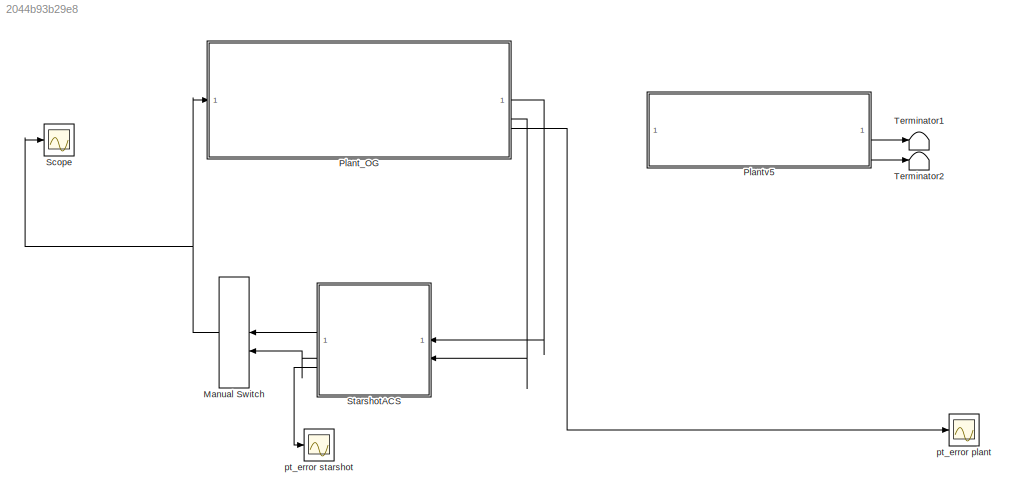
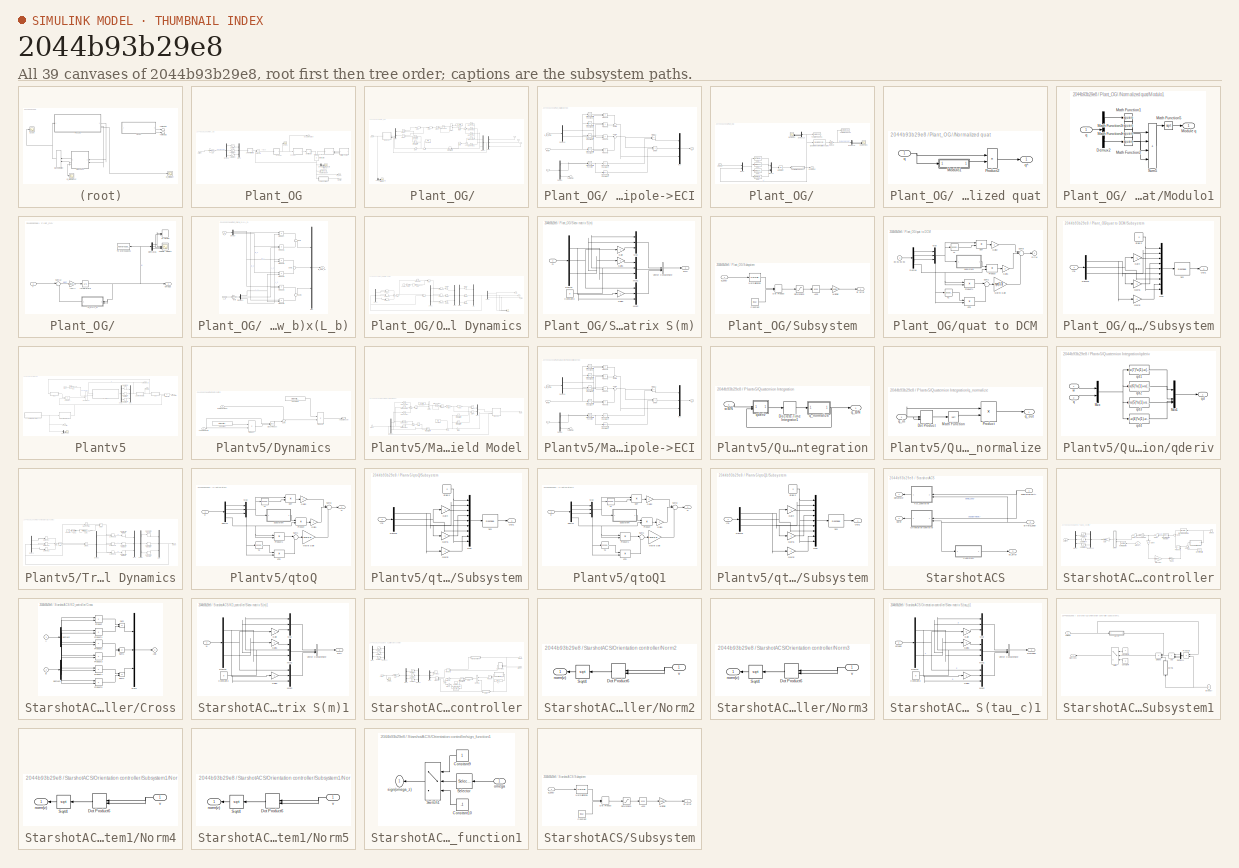
[diagram: thumbnail index - all 39 canvases of the model, root first then tree order]
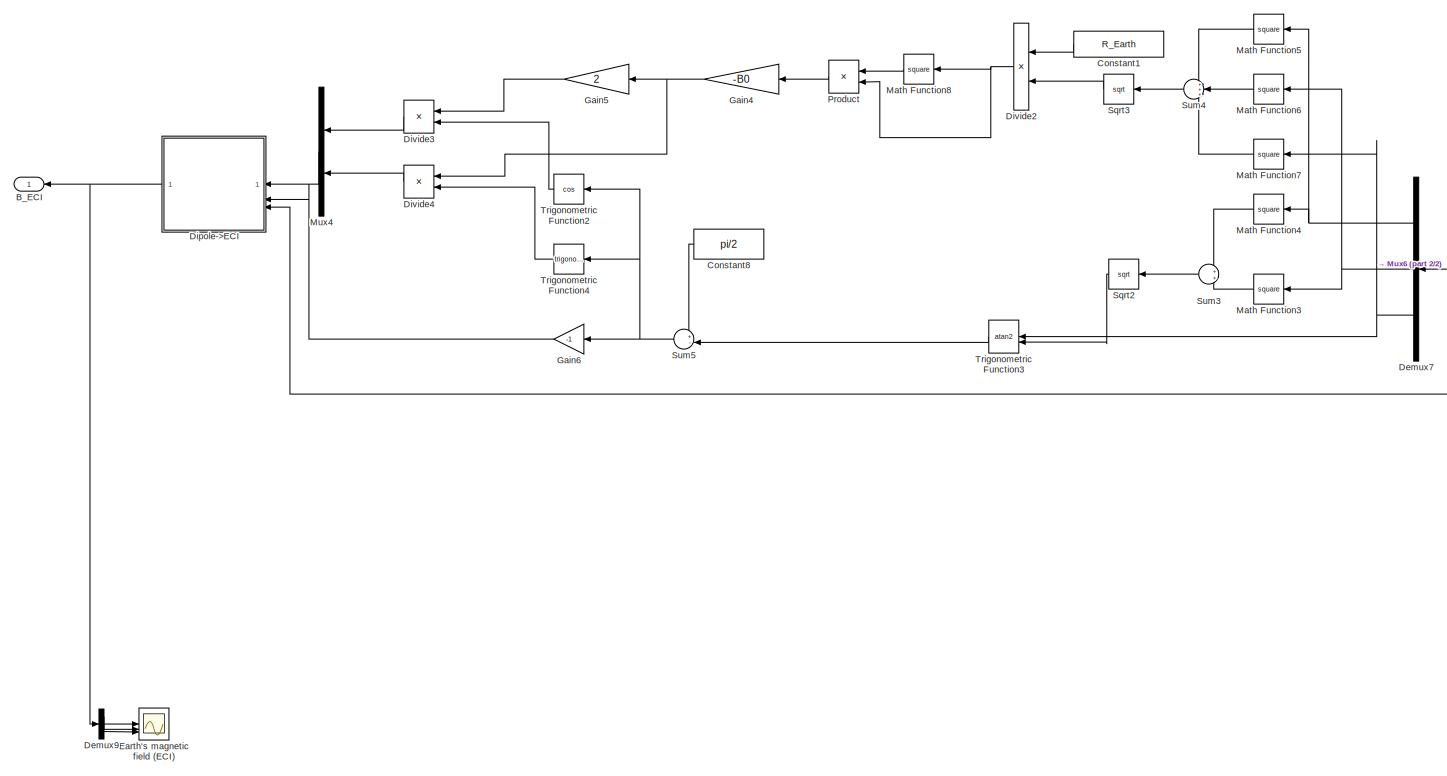
[diagram: Plant_OG/  - part 1/2, most of the canvas]
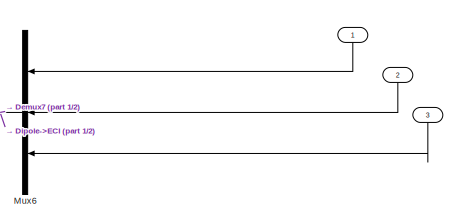
[diagram: Plant_OG/  - part 2/2, middle right region]
MODEL slx_2044b93b29e8
KIND model
CONFIG AbsTol = auto
CONFIG EnableMultiTasking = off
CONFIG FixedStep = auto
CONFIG MaxStep = 4.0
CONFIG MinStep = .001
CONFIG RelTol = 1e-6
CONFIG SampleTimeConstraint = Unconstrained
CONFIG SolverName = ode45
CONFIG StartTime = 0.0
CONFIG StopTime = 10000
BLOCK [ManualSwitch] Manual Switch
  CurrentSetting = 0
  NameLocation = top
BLOCK [SubSystem] Plant_OG
BLOCK [SubSystem] Plant_OG/ 
BLOCK [SubSystem] Plant_OG/   
BLOCK [SubSystem] Plant_OG/     
BLOCK [SubSystem] Plant_OG/     /(w_b)x(L_b)
BLOCK [Outport] Plant_OG/     /(w_b)x(L_b)/(w_b)x(L_b)
BLOCK [Demux] Plant_OG/     /(w_b)x(L_b)/Demux
  Outputs = 3
BLOCK [Demux] Plant_OG/     /(w_b)x(L_b)/Demux1
  Outputs = 3
BLOCK [Gain] Plant_OG/     /(w_b)x(L_b)/Inv(I)
  Gain = starshot.IC.massproperties.I
  Multiplication = Matrix(K*u)
BLOCK [Inport] Plant_OG/     /(w_b)x(L_b)/L_b
  Port = 2
BLOCK [Mux] Plant_OG/     /(w_b)x(L_b)/Mux
  DisplayOption = bar
  Inputs = 3
BLOCK [Product] Plant_OG/     /(w_b)x(L_b)/Product
BLOCK [Product] Plant_OG/     /(w_b)x(L_b)/Product1
BLOCK [Product] Plant_OG/     /(w_b)x(L_b)/Product2
BLOCK [Product] Plant_OG/     /(w_b)x(L_b)/Product3
BLOCK [Product] Plant_OG/     /(w_b)x(L_b)/Product4
BLOCK [Product] Plant_OG/     /(w_b)x(L_b)/Product5
BLOCK [Sum] Plant_OG/     /(w_b)x(L_b)/Sum
  Inputs = +|-
BLOCK [Sum] Plant_OG/     /(w_b)x(L_b)/Sum1
  Inputs = -|+
BLOCK [Sum] Plant_OG/     /(w_b)x(L_b)/Sum2
  Inputs = +|-
BLOCK [Inport] Plant_OG/     /(w_b)x(L_b)/w_b
BLOCK [Scope] Plant_OG/     /Angular velocity
  Floating = off
  NumInputPorts = 3
  ScopeSpecificationString = Simulink.scopes.TimeScopeBlockCfg('CurrentConfiguration', extmgr.ConfigurationSet(extmgr.Configuration('Core','General UI',true),extmgr.Configuration('Core','Source UI',true),extmgr.Configuration('Sources','WiredSimulink',true,'DataLoggingVariableName','ScopeData1'),extmgr.Configuration('Visuals','Time Domain',true,'SerializedDisplays',{struct('MinYLimReal','-0.741','MaxYLimReal','0.66904','YLabel...<+2792ch>
BLOCK [Demux] Plant_OG/     /Demux16
  Outputs = 3
BLOCK [Integrator] Plant_OG/     /Integrator6
  InitialCondition = starshot.IC.w
BLOCK [Gain] Plant_OG/     /Inv(I)
  Gain = starshot.IC.massproperties.Iinv
  Multiplication = Matrix(K*u)
BLOCK [Sum] Plant_OG/     /Sum12
  Inputs = |+-
BLOCK [Inport] Plant_OG/     /T
BLOCK [ToWorkspace] Plant_OG/     /To Workspace1
  FixptAsFi = on
  MaxDataPoints = inf
  SampleTime = -1
  SaveFormat = Timeseries
  VariableName = w
BLOCK [Record] Plant_OG/     /XY Graph
  CompatibilityTag = XY
  FileSettingsInternal = {"entries":[{"content":{"excelSettings":{"content":{},"type":"Streamout.ExcelSettings"}},"type":"Streamout.FileSettingStorage","uuid":""}],"packageUris":["http:\/\/schema.mathworks.com\/mf0\/streamout_blocks\/R2020a"],"version":"1.0"}
  Layout = [1 1]
  SignalsInternal = {"entries":[{"content":{"signals":[{"content":{"blockPath":[],"dimensions":[1],"domain":"","lineColor":"#a2142f","plots":[1],"port":1,"sid":[""],"signalID":12021,"signalName":"Demux16:1"},"type":"RecordBlkView.Signal","uuid":""},{"content":{"blockPath":[],"dimensions":[1],"domain":"","lineColor":"#139fff","plots":[1],"port":2,"sid":[""],"signalID":12025,"signalName":"Demux16:2"},"type":"RecordBlkV...<+168ch>
  VisualizationBindings = {"xyplotplugin":{"info":[{"series":[{"bindingParametersList":[{"parameter":"X-Axis","signalID":12021,"signalName":"Demux16:1"},{"parameter":"Y-Axis","signalID":12025,"signalName":"Demux16:2"}],"seriesID":10409}],"subplotID":1}]}}
  st = -1
BLOCK [Outport] Plant_OG/     /omega
BLOCK [Demux] Plant_OG/   /Demux13
BLOCK [Demux] Plant_OG/   /Demux18
  Outputs = 3
BLOCK [Scope] Plant_OG/   /Euler angles
  Floating = off
  NumInputPorts = 3
  ScopeSpecificationString = Simulink.scopes.TimeScopeBlockCfg('CurrentConfiguration', extmgr.ConfigurationSet(extmgr.Configuration('Core','General UI',true),extmgr.Configuration('Core','Source UI',true),extmgr.Configuration('Sources','WiredSimulink',true,'DataLoggingVariableName','ScopeData2'),extmgr.Configuration('Visuals','Time Domain',true,'SerializedDisplays',{struct('MinYLimReal','-224.97937','MaxYLimReal','224.98449','...<+2815ch>
BLOCK [Gain] Plant_OG/   /Gain18
  Gain = 180/pi
BLOCK [Integrator] Plant_OG/   /Integrator7
  InitialCondition = q0
BLOCK [Mux] Plant_OG/   /Mux10
  DisplayOption = bar
BLOCK [Mux] Plant_OG/   /Mux3
  DisplayOption = bar
  Inputs = 2
BLOCK [SubSystem] Plant_OG/   /Normalized quat
BLOCK [SubSystem] Plant_OG/   /Normalized quat/Modulo1
BLOCK [Demux] Plant_OG/   /Normalized quat/Modulo1/Demux2
  DisplayOption = none
BLOCK [Math] Plant_OG/   /Normalized quat/Modulo1/Math Function1
  Operator = square
  SignedPower = on
BLOCK [Math] Plant_OG/   /Normalized quat/Modulo1/Math Function2
  Operator = square
  SignedPower = on
BLOCK [Math] Plant_OG/   /Normalized quat/Modulo1/Math Function3
  Operator = square
  SignedPower = on
BLOCK [Math] Plant_OG/   /Normalized quat/Modulo1/Math Function4
  Operator = square
  SignedPower = on
BLOCK [Math] Plant_OG/   /Normalized quat/Modulo1/Math Function5
  Operator = sqrt
  SignedPower = on
BLOCK [Outport] Plant_OG/   /Normalized quat/Modulo1/Module q
BLOCK [Sum] Plant_OG/   /Normalized quat/Modulo1/Sum5
  IconShape = rectangular
  Inputs = |++++
  SaturateOnIntegerOverflow = on
BLOCK [Inport] Plant_OG/   /Normalized quat/Modulo1/q
BLOCK [Product] Plant_OG/   /Normalized quat/Product2
  Inputs = */
  OutDataTypeStr = Inherit: Same as first input
  SaturateOnIntegerOverflow = on
BLOCK [Inport] Plant_OG/   /Normalized quat/q
BLOCK [Outport] Plant_OG/   /Normalized quat/q^
BLOCK [Scope] Plant_OG/   /Quaternion
  Floating = off
  NumInputPorts = 4
  ScopeSpecificationString = Simulink.scopes.TimeScopeBlockCfg('CurrentConfiguration', extmgr.ConfigurationSet(extmgr.Configuration('Core','General UI',true),extmgr.Configuration('Core','Source UI',true),extmgr.Configuration('Sources','WiredSimulink',true,'DataLoggingVariableName','ScopeData3'),extmgr.Configuration('Visuals','Time Domain',true,'SerializedDisplays',{struct('MinYLimReal','-1.22386','MaxYLimReal','1.22384','YLab...<+3460ch>
BLOCK [Reference] Plant_OG/   /Quaternions to Rotation Angles  REF=sharedtransform/Quaternions to Rotation Angles
  AttributesFormatString = Rotation Order: %<rotationOrder>
  SourceBlock = sharedtransform/Quaternions to Rotation Angles
  SourceType = Quat2Ang
BLOCK [ToWorkspace] Plant_OG/   /To Workspace2
  FixptAsFi = on
  MaxDataPoints = inf
  SampleTime = -1
  SaveFormat = Timeseries
  VariableName = Eul1
BLOCK [ToWorkspace] Plant_OG/   /To Workspace6
  FixptAsFi = on
  MaxDataPoints = inf
  SampleTime = -1
  SaveFormat = Timeseries
  VariableName = q
BLOCK [Inport] Plant_OG/   /omega
BLOCK [Fcn] Plant_OG/   /qd(0)
  Expr = (u(7)*u(1)-u(6)*u(2)+u(5)*u(3))/2
BLOCK [Fcn] Plant_OG/   /qd(1)
  Expr = (u(6)*u(1)+u(7)*u(2)-u(4)*u(3))/2
BLOCK [Fcn] Plant_OG/   /qd(2)
  Expr = (-u(5)*u(1)+u(4)*u(2)+u(7)*u(3))/2
BLOCK [Fcn] Plant_OG/   /qd(3)
  Expr = (-u(4)*u(1)-u(5)*u(2)-u(6)*u(3))/2
BLOCK [Outport] Plant_OG/   /quaternion
BLOCK [Inport] Plant_OG/ / 
  NameLocation = right
  Port = 3
BLOCK [Outport] Plant_OG/ /B_ECI
BLOCK [Constant] Plant_OG/ /Constant1
  Value = R_Earth
BLOCK [Constant] Plant_OG/ /Constant8
  Value = pi/2
BLOCK [Demux] Plant_OG/ /Demux7
  Outputs = 3
BLOCK [Demux] Plant_OG/ /Demux9
  Outputs = 3
BLOCK [SubSystem] Plant_OG/ /Dipole->ECI
BLOCK [Inport] Plant_OG/ /Dipole->ECI/-theta
  Port = 2
BLOCK [Outport] Plant_OG/ /Dipole->ECI/B
BLOCK [Inport] Plant_OG/ /Dipole->ECI/B_r,B_theta
BLOCK [Demux] Plant_OG/ /Dipole->ECI/Demux
  Outputs = 3
BLOCK [Demux] Plant_OG/ /Dipole->ECI/Demux8
  Outputs = 2
BLOCK [Product] Plant_OG/ /Dipole->ECI/Divide
  Inputs = **
BLOCK [Product] Plant_OG/ /Dipole->ECI/Divide1
  Inputs = **
BLOCK [Mux] Plant_OG/ /Dipole->ECI/Mux
  DisplayOption = bar
  Inputs = 3
BLOCK [Product] Plant_OG/ /Dipole->ECI/Product1
BLOCK [Product] Plant_OG/ /Dipole->ECI/Product2
BLOCK [Product] Plant_OG/ /Dipole->ECI/Product3
BLOCK [Product] Plant_OG/ /Dipole->ECI/Product4
BLOCK [Sum] Plant_OG/ /Dipole->ECI/Sum5
  Inputs = +-|
BLOCK [Sum] Plant_OG/ /Dipole->ECI/Sum6
  Inputs = |++
BLOCK [Terminator] Plant_OG/ /Dipole->ECI/Terminator
BLOCK [Trigonometry] Plant_OG/ /Dipole->ECI/Trigonometric Function
  Operator = atan2
BLOCK [Trigonometry] Plant_OG/ /Dipole->ECI/Trigonometric Function1
  Operator = cos
BLOCK [Trigonometry] Plant_OG/ /Dipole->ECI/Trigonometric Function2
BLOCK [Trigonometry] Plant_OG/ /Dipole->ECI/Trigonometric Function5
  Operator = cos
BLOCK [Trigonometry] Plant_OG/ /Dipole->ECI/Trigonometric Function6
BLOCK [Trigonometry] Plant_OG/ /Dipole->ECI/Trigonometric Function7
BLOCK [Trigonometry] Plant_OG/ /Dipole->ECI/Trigonometric Function8
  Operator = cos
BLOCK [Inport] Plant_OG/ /Dipole->ECI/r
  Port = 3
BLOCK [Product] Plant_OG/ /Divide2
  Inputs = */
BLOCK [Product] Plant_OG/ /Divide3
  Inputs = **
BLOCK [Product] Plant_OG/ /Divide4
  Inputs = **
BLOCK [Scope] Plant_OG/ /Earth's magnetic field (ECI)
  Floating = off
  NumInputPorts = 3
  ScopeSpecificationString = Simulink.scopes.TimeScopeBlockCfg('CurrentConfiguration', extmgr.ConfigurationSet(extmgr.Configuration('Core','General UI',true),extmgr.Configuration('Core','Source UI',true),extmgr.Configuration('Sources','WiredSimulink',true,'DataLoggingVariableName','ScopeData4'),extmgr.Configuration('Visuals','Time Domain',true,'SerializedDisplays',{struct('MinYLimReal','-0.0000027','MaxYLimReal','0.0000027','...<+2790ch>
BLOCK [Gain] Plant_OG/ /Gain4
  Gain = -B0
BLOCK [Gain] Plant_OG/ /Gain5
  Gain = 2
BLOCK [Gain] Plant_OG/ /Gain6
  Gain = -1
BLOCK [Math] Plant_OG/ /Math Function3
  Operator = square
  SignedPower = on
BLOCK [Math] Plant_OG/ /Math Function4
  Operator = square
  SignedPower = on
BLOCK [Math] Plant_OG/ /Math Function5
  Operator = square
  SignedPower = on
BLOCK [Math] Plant_OG/ /Math Function6
  Operator = square
  SignedPower = on
BLOCK [Math] Plant_OG/ /Math Function7
  Operator = square
  SignedPower = on
BLOCK [Math] Plant_OG/ /Math Function8
  Operator = square
  SignedPower = on
BLOCK [Mux] Plant_OG/ /Mux4
  DisplayOption = bar
  Inputs = 2
BLOCK [Mux] Plant_OG/ /Mux6
  DisplayOption = bar
  Inputs = 3
BLOCK [Product] Plant_OG/ /Product
BLOCK [Sqrt] Plant_OG/ /Sqrt2
BLOCK [Sqrt] Plant_OG/ /Sqrt3
BLOCK [Sum] Plant_OG/ /Sum3
BLOCK [Sum] Plant_OG/ /Sum4
  Inputs = +++
BLOCK [Sum] Plant_OG/ /Sum5
  Inputs = +-|
BLOCK [Trigonometry] Plant_OG/ /Trigonometric Function2
  Operator = cos
BLOCK [Trigonometry] Plant_OG/ /Trigonometric Function3
  Operator = atan2
BLOCK [Trigonometry] Plant_OG/ /Trigonometric Function4
BLOCK [Outport] Plant_OG/B_body
  Port = 2
BLOCK [Demux] Plant_OG/Demux4
  Outputs = 3
BLOCK [Demux] Plant_OG/Demux8
  NameLocation = top
  Outputs = 3
BLOCK [Scope] Plant_OG/Earth's magnetic field (body)
  Floating = off
  NumInputPorts = 3
  ScopeSpecificationString = Simulink.scopes.TimeScopeBlockCfg('CurrentConfiguration', extmgr.ConfigurationSet(extmgr.Configuration('Core','General UI',true),extmgr.Configuration('Core','Source UI',true),extmgr.Configuration('Sources','WiredSimulink',true,'DataLoggingVariableName','ScopeData2'),extmgr.Configuration('Visuals','Time Domain',true,'SerializedDisplays',{struct('MinYLimReal','-0.000034','MaxYLimReal','0.000035','YL...<+2805ch>
BLOCK [Gain] Plant_OG/Gain
  Gain = starshot.magnetorq.A*starshot.magnetorq.n*starshot.magnetorq.k
BLOCK [Product] Plant_OG/Matrix Multiply
  Multiplication = Matrix(*)
  NameLocation = left
BLOCK [Mux] Plant_OG/Mux9
  DisplayOption = bar
  Inputs = 3
  NameLocation = top
BLOCK [SubSystem] Plant_OG/Orbital Dynamics
BLOCK [Constant] Plant_OG/Orbital Dynamics/Constant
  Value = -G
BLOCK [Demux] Plant_OG/Orbital Dynamics/Demux
  Outputs = 3
BLOCK [Demux] Plant_OG/Orbital Dynamics/Demux1
  Outputs = 3
BLOCK [Demux] Plant_OG/Orbital Dynamics/Demux2
  Outputs = 3
BLOCK [Demux] Plant_OG/Orbital Dynamics/Demux3
  Outputs = 3
BLOCK [Product] Plant_OG/Orbital Dynamics/Divide
  Inputs = /*
BLOCK [Product] Plant_OG/Orbital Dynamics/Divide1
  Inputs = /*
BLOCK [DotProduct] Plant_OG/Orbital Dynamics/Dot Product
  OutDataTypeStr = Inherit: Inherit via internal rule
BLOCK [DotProduct] Plant_OG/Orbital Dynamics/Dot Product1
  OutDataTypeStr = Inherit: Inherit via internal rule
BLOCK [DotProduct] Plant_OG/Orbital Dynamics/Dot Product2
  OutDataTypeStr = Inherit: Inherit via internal rule
BLOCK [DotProduct] Plant_OG/Orbital Dynamics/Dot Product3
  OutDataTypeStr = Inherit: Inherit via internal rule
BLOCK [DotProduct] Plant_OG/Orbital Dynamics/Dot Product4
  OutDataTypeStr = Inherit: Inherit via internal rule
BLOCK [DotProduct] Plant_OG/Orbital Dynamics/Dot Product5
  OutDataTypeStr = Inherit: Inherit via internal rule
BLOCK [Gain] Plant_OG/Orbital Dynamics/Gain1
  Gain = M_Earth
BLOCK [Gain] Plant_OG/Orbital Dynamics/Gain2
  Gain = starshot.IC.massproperties.m
BLOCK [Integrator] Plant_OG/Orbital Dynamics/Integrator
  InitialCondition = starshot.IC.x
BLOCK [Integrator] Plant_OG/Orbital Dynamics/Integrator1
  InitialCondition = starshot.IC.y
BLOCK [Integrator] Plant_OG/Orbital Dynamics/Integrator2
  InitialCondition = starshot.IC.z
BLOCK [Integrator] Plant_OG/Orbital Dynamics/Integrator3
  InitialCondition = starshot.IC.xdot
BLOCK [Integrator] Plant_OG/Orbital Dynamics/Integrator4
  InitialCondition = starshot.IC.ydot
BLOCK [Integrator] Plant_OG/Orbital Dynamics/Integrator5
  InitialCondition = starshot.IC.zdot
BLOCK [Math] Plant_OG/Orbital Dynamics/Math Function
  Operator = square
  SignedPower = on
BLOCK [Mux] Plant_OG/Orbital Dynamics/Mux
  DisplayOption = bar
  Inputs = 3
BLOCK [Mux] Plant_OG/Orbital Dynamics/Mux1
  DisplayOption = bar
  Inputs = 3
BLOCK [Scope] Plant_OG/Orbital Dynamics/Scope
  Floating = off
  NumInputPorts = 3
  ScopeSpecificationString = Simulink.scopes.TimeScopeBlockCfg('CurrentConfiguration', extmgr.ConfigurationSet(extmgr.Configuration('Core','General UI',true),extmgr.Configuration('Core','Source UI',true),extmgr.Configuration('Sources','WiredSimulink',true,'DataLoggingVariableName','ScopeData5'),extmgr.Configuration('Visuals','Time Domain',true,'SerializedDisplays',{struct('MinYLimReal','-11742729.24308','MaxYLimReal','8605858...<+2827ch>
BLOCK [Sqrt] Plant_OG/Orbital Dynamics/Sqrt
BLOCK [Sum] Plant_OG/Orbital Dynamics/Sum
  Inputs = +++
BLOCK [Outport] Plant_OG/Orbital Dynamics/x_ECI
BLOCK [Outport] Plant_OG/Orbital Dynamics/y_ECI
  Port = 2
BLOCK [Outport] Plant_OG/Orbital Dynamics/z_ECI
  Port = 3
BLOCK [Product] Plant_OG/Product2
  Multiplication = Matrix(*)
  NameLocation = top
BLOCK [Saturate] Plant_OG/Saturation
  LowerLimit = -starshot.magnetorq.m_max_x
  UpperLimit = starshot.magnetorq.m_max_x
BLOCK [Saturate] Plant_OG/Saturation1
  LowerLimit = -starshot.magnetorq.m_max_y
  UpperLimit = starshot.magnetorq.m_max_y
BLOCK [Saturate] Plant_OG/Saturation2
  LowerLimit = -starshot.magnetorq.m_max_z
  UpperLimit = starshot.magnetorq.m_max_z
BLOCK [Scope] Plant_OG/Scope
  Floating = off
  NumInputPorts = 1
  ScopeSpecificationString = Simulink.scopes.TimeScopeBlockCfg
BLOCK [SubSystem] Plant_OG/Skew matrix S(m)
  NameLocation = top
BLOCK [Constant] Plant_OG/Skew matrix S(m)/Constant3
  Value = 0
BLOCK [Demux] Plant_OG/Skew matrix S(m)/Demux
  Outputs = 3
BLOCK [Gain] Plant_OG/Skew matrix S(m)/Gain
  Gain = -1
BLOCK [Gain] Plant_OG/Skew matrix S(m)/Gain1
  Gain = -1
BLOCK [Gain] Plant_OG/Skew matrix S(m)/Gain2
  Gain = -1
BLOCK [Mux] Plant_OG/Skew matrix S(m)/Mux
  DisplayOption = bar
  Inputs = 3
BLOCK [Mux] Plant_OG/Skew matrix S(m)/Mux1
  DisplayOption = bar
  Inputs = 3
BLOCK [Mux] Plant_OG/Skew matrix S(m)/Mux2
  DisplayOption = bar
  Inputs = 3
BLOCK [Outport] Plant_OG/Skew matrix S(m)/S(m)
BLOCK [Concatenate] Plant_OG/Skew matrix S(m)/Vector Concatenate
  ConcatenateDimension = 2
  Mode = Multidimensional array
  NumInputs = 3
BLOCK [Inport] Plant_OG/Skew matrix S(m)/m
BLOCK [SubSystem] Plant_OG/Subsystem
BLOCK [Trigonometry] Plant_OG/Subsystem/Acos
  Operator = acos
BLOCK [Inport] Plant_OG/Subsystem/B_body
BLOCK [Constant] Plant_OG/Subsystem/Constant
  Value = [0,0,1]
BLOCK [DotProduct] Plant_OG/Subsystem/Dot Product
  OutDataTypeStr = Inherit: Inherit via internal rule
BLOCK [Gain] Plant_OG/Subsystem/Multiply
  Gain = 180/pi
BLOCK [Reference] Plant_OG/Subsystem/Normalization  REF=dspmathops/Normalization
  SourceBlock = dspmathops/Normalization
  SourceType = Normalization
BLOCK [Saturate] Plant_OG/Subsystem/Saturation3
  LowerLimit = -1
  UpperLimit = 1
BLOCK [Outport] Plant_OG/Subsystem/pt error
BLOCK [ToWorkspace] Plant_OG/To Workspace4
  FixptAsFi = on
  MaxDataPoints = inf
  SampleTime = -1
  SaveFormat = Timeseries
  VariableName = b
BLOCK [Outport] Plant_OG/angular velocity w
BLOCK [Inport] Plant_OG/current
BLOCK [Outport] Plant_OG/pt_error
  Port = 3
BLOCK [SubSystem] Plant_OG/quat to DCM
  NameLocation = top
  ShowPortLabels = none
BLOCK [Outport] Plant_OG/quat to DCM/DCM
  InitialOutput = 0
BLOCK [Demux] Plant_OG/quat to DCM/Demux
  DisplayOption = none
BLOCK [Gain] Plant_OG/quat to DCM/Gain1
  Gain = 2
  OutDataTypeStr = Inherit: Same as input
  ParamDataTypeStr = Inherit: Same as input
  SaturateOnIntegerOverflow = on
BLOCK [Gain] Plant_OG/quat to DCM/Gain2
  Gain = 2
  OutDataTypeStr = Inherit: Same as input
  ParamDataTypeStr = Inherit: Same as input
  SaturateOnIntegerOverflow = on
BLOCK [Gain] Plant_OG/quat to DCM/Matrix Gain
  Gain = eye(3,3)
  OutDataTypeStr = Inherit: Same as input
  ParamDataTypeStr = Inherit: Same as input
  SaturateOnIntegerOverflow = on
BLOCK [Mux] Plant_OG/quat to DCM/Mux
  DisplayOption = bar
  Inputs = 3
BLOCK [Product] Plant_OG/quat to DCM/Product
  InputSameDT = on
  OutDataTypeStr = Inherit: Same as first input
  SaturateOnIntegerOverflow = on
BLOCK [Product] Plant_OG/quat to DCM/Product1
  InputSameDT = on
  OutDataTypeStr = Inherit: Same as first input
  SaturateOnIntegerOverflow = on
BLOCK [SubSystem] Plant_OG/quat to DCM/Subsystem
BLOCK [Reshape] Plant_OG/quat to DCM/Subsystem/3x3
  OutputDimensionality = Customize
  OutputDimensions = [3,3]
BLOCK [Demux] Plant_OG/quat to DCM/Subsystem/Demux
  DisplayOption = none
  Outputs = 3
BLOCK [Gain] Plant_OG/quat to DCM/Subsystem/Gain
  Gain = -1
  OutDataTypeStr = Inherit: Same as input
  ParamDataTypeStr = Inherit: Same as input
  SaturateOnIntegerOverflow = on
BLOCK [Gain] Plant_OG/quat to DCM/Subsystem/Gain1
  Gain = -1
  OutDataTypeStr = Inherit: Same as input
  ParamDataTypeStr = Inherit: Same as input
  SaturateOnIntegerOverflow = on
BLOCK [Gain] Plant_OG/quat to DCM/Subsystem/Gain2
  Gain = -1
  OutDataTypeStr = Inherit: Same as input
  ParamDataTypeStr = Inherit: Same as input
  SaturateOnIntegerOverflow = on
BLOCK [Inport] Plant_OG/quat to DCM/Subsystem/In1
BLOCK [Mux] Plant_OG/quat to DCM/Subsystem/Mux
  DisplayOption = bar
  Inputs = 9
BLOCK [Outport] Plant_OG/quat to DCM/Subsystem/Out1
BLOCK [Constant] Plant_OG/quat to DCM/Subsystem/diag 0 
  Value = 0
BLOCK [Sum] Plant_OG/quat to DCM/Sum1
  InputSameDT = on
  Inputs = |+-
  OutDataTypeStr = Inherit: Same as first input
  SaturateOnIntegerOverflow = on
BLOCK [Sum] Plant_OG/quat to DCM/Sum8
  InputSameDT = on
  Inputs = |+-+
  OutDataTypeStr = Inherit: Same as first input
  SaturateOnIntegerOverflow = on
BLOCK [Math] Plant_OG/quat to DCM/T1
  Operator = transpose
  SignedPower = on
BLOCK [Math] Plant_OG/quat to DCM/T2
  Operator = transpose
  SignedPower = on
BLOCK [Inport] Plant_OG/quat to DCM/e0 e1 e2 e3
BLOCK [Product] Plant_OG/quat to DCM/qTq
  InputSameDT = on
  Multiplication = Matrix(*)
  OutDataTypeStr = Inherit: Same as first input
  SaturateOnIntegerOverflow = on
BLOCK [Product] Plant_OG/quat to DCM/qqT
  InputSameDT = on
  Multiplication = Matrix(*)
  OutDataTypeStr = Inherit: Same as first input
  SaturateOnIntegerOverflow = on
BLOCK [SubSystem] Plantv5
  Commented = on
  TreatAsAtomicUnit = on
BLOCK [Reference] Plantv5/Cross Product  REF=vrlib/Utilities/Cross Product
  SourceBlock = vrlib/Utilities/Cross Product
  SourceType = Cross Product
BLOCK [Demux] Plantv5/Demux
  Outputs = 3
BLOCK [Demux] Plantv5/Demux4
  Outputs = 3
BLOCK [DiscreteIntegrator] Plantv5/Discrete-Time Integrator
  ICPrevOutput = DiscIntNeverNeededParam
  ICPrevScaledInput = DiscIntNeverNeededParam
  InitialCondition = starshot.IC.w(1)
  InitialConditionSetting = Auto
  SampleTime = -1
BLOCK [DiscreteIntegrator] Plantv5/Discrete-Time Integrator1
  ICPrevOutput = DiscIntNeverNeededParam
  ICPrevScaledInput = DiscIntNeverNeededParam
  InitialCondition = starshot.IC.w(2)
  InitialConditionSetting = Auto
  SampleTime = -1
BLOCK [DiscreteIntegrator] Plantv5/Discrete-Time Integrator2
  ICPrevOutput = DiscIntNeverNeededParam
  ICPrevScaledInput = DiscIntNeverNeededParam
  InitialCondition = starshot.IC.w(3)
  InitialConditionSetting = Auto
  SampleTime = -1
BLOCK [SubSystem] Plantv5/Dynamics
  TreatAsAtomicUnit = on
BLOCK [Outport] Plantv5/Dynamics/Angular Accel
BLOCK [Inport] Plantv5/Dynamics/Angular Velocity
BLOCK [Constant] Plantv5/Dynamics/Constant
  Value = starshot.IC.massproperties.I
BLOCK [Constant] Plantv5/Dynamics/Constant1
  Value = starshot.IC.massproperties.Iinv
BLOCK [Reference] Plantv5/Dynamics/Cross Product  REF=vrlib/Utilities/Cross Product
  SourceBlock = vrlib/Utilities/Cross Product
  SourceType = Cross Product
BLOCK [Inport] Plantv5/Dynamics/External Torque
  Port = 2
BLOCK [Product] Plantv5/Dynamics/Product
  Multiplication = Matrix(*)
BLOCK [Product] Plantv5/Dynamics/Product1
  Multiplication = Matrix(*)
BLOCK [Sum] Plantv5/Dynamics/Sum
  Inputs = +-
BLOCK [Gain] Plantv5/Gain
  Gain = starshot.magnetorq.A*starshot.magnetorq.n*starshot.magnetorq.k
BLOCK [SubSystem] Plantv5/Magnetic Field Model
  TreatAsAtomicUnit = on
BLOCK [Constant] Plantv5/Magnetic Field Model/Constant1
  Value = R_Earth
BLOCK [Constant] Plantv5/Magnetic Field Model/Constant8
  Value = pi/2
BLOCK [Demux] Plantv5/Magnetic Field Model/Demux7
  Outputs = 3
BLOCK [SubSystem] Plantv5/Magnetic Field Model/Dipole->ECI
  TreatAsAtomicUnit = on
BLOCK [Inport] Plantv5/Magnetic Field Model/Dipole->ECI/-theta
  Port = 2
BLOCK [Outport] Plantv5/Magnetic Field Model/Dipole->ECI/B
BLOCK [Inport] Plantv5/Magnetic Field Model/Dipole->ECI/B_r,B_theta
BLOCK [Demux] Plantv5/Magnetic Field Model/Dipole->ECI/Demux
  Outputs = 3
BLOCK [Demux] Plantv5/Magnetic Field Model/Dipole->ECI/Demux8
  Outputs = 2
BLOCK [Product] Plantv5/Magnetic Field Model/Dipole->ECI/Divide
  Inputs = **
BLOCK [Product] Plantv5/Magnetic Field Model/Dipole->ECI/Divide1
  Inputs = **
BLOCK [Mux] Plantv5/Magnetic Field Model/Dipole->ECI/Mux
  DisplayOption = bar
  Inputs = 3
BLOCK [Product] Plantv5/Magnetic Field Model/Dipole->ECI/Product1
BLOCK [Product] Plantv5/Magnetic Field Model/Dipole->ECI/Product2
BLOCK [Product] Plantv5/Magnetic Field Model/Dipole->ECI/Product3
BLOCK [Product] Plantv5/Magnetic Field Model/Dipole->ECI/Product4
BLOCK [Sum] Plantv5/Magnetic Field Model/Dipole->ECI/Sum5
  Inputs = +-|
BLOCK [Sum] Plantv5/Magnetic Field Model/Dipole->ECI/Sum6
  Inputs = |++
BLOCK [Terminator] Plantv5/Magnetic Field Model/Dipole->ECI/Terminator
BLOCK [Trigonometry] Plantv5/Magnetic Field Model/Dipole->ECI/Trigonometric Function
  Operator = atan2
BLOCK [Trigonometry] Plantv5/Magnetic Field Model/Dipole->ECI/Trigonometric Function1
  Operator = cos
BLOCK [Trigonometry] Plantv5/Magnetic Field Model/Dipole->ECI/Trigonometric Function2
BLOCK [Trigonometry] Plantv5/Magnetic Field Model/Dipole->ECI/Trigonometric Function5
  Operator = cos
BLOCK [Trigonometry] Plantv5/Magnetic Field Model/Dipole->ECI/Trigonometric Function6
BLOCK [Trigonometry] Plantv5/Magnetic Field Model/Dipole->ECI/Trigonometric Function7
BLOCK [Trigonometry] Plantv5/Magnetic Field Model/Dipole->ECI/Trigonometric Function8
  Operator = cos
BLOCK [Inport] Plantv5/Magnetic Field Model/Dipole->ECI/r
  Port = 3
BLOCK [Product] Plantv5/Magnetic Field Model/Divide2
  Inputs = */
BLOCK [Product] Plantv5/Magnetic Field Model/Divide3
  Inputs = **
BLOCK [Product] Plantv5/Magnetic Field Model/Divide4
  Inputs = **
BLOCK [Outport] Plantv5/Magnetic Field Model/ECI_B
BLOCK [Inport] Plantv5/Magnetic Field Model/ECIxyz
  NameLocation = top
BLOCK [Gain] Plantv5/Magnetic Field Model/Gain4
  Gain = -B0
BLOCK [Gain] Plantv5/Magnetic Field Model/Gain5
  Gain = 2
BLOCK [Gain] Plantv5/Magnetic Field Model/Gain6
  Gain = -1
BLOCK [Math] Plantv5/Magnetic Field Model/Math Function3
  Operator = square
  SignedPower = on
BLOCK [Math] Plantv5/Magnetic Field Model/Math Function4
  Operator = square
  SignedPower = on
BLOCK [Math] Plantv5/Magnetic Field Model/Math Function5
  Operator = square
  SignedPower = on
BLOCK [Math] Plantv5/Magnetic Field Model/Math Function6
  Operator = square
  SignedPower = on
BLOCK [Math] Plantv5/Magnetic Field Model/Math Function7
  Operator = square
  SignedPower = on
BLOCK [Math] Plantv5/Magnetic Field Model/Math Function8
  Operator = square
  SignedPower = on
BLOCK [Mux] Plantv5/Magnetic Field Model/Mux4
  DisplayOption = bar
  Inputs = 2
BLOCK [Product] Plantv5/Magnetic Field Model/Product
BLOCK [Sqrt] Plantv5/Magnetic Field Model/Sqrt2
BLOCK [Sqrt] Plantv5/Magnetic Field Model/Sqrt3
BLOCK [Sum] Plantv5/Magnetic Field Model/Sum3
BLOCK [Sum] Plantv5/Magnetic Field Model/Sum4
  Inputs = +++
BLOCK [Sum] Plantv5/Magnetic Field Model/Sum5
  Inputs = +-|
BLOCK [Trigonometry] Plantv5/Magnetic Field Model/Trigonometric Function2
  Operator = cos
BLOCK [Trigonometry] Plantv5/Magnetic Field Model/Trigonometric Function3
  Operator = atan2
BLOCK [Trigonometry] Plantv5/Magnetic Field Model/Trigonometric Function4
BLOCK [Product] Plantv5/Matrix Multiply
  Multiplication = Matrix(*)
BLOCK [Product] Plantv5/Matrix Multiply1
  Multiplication = Matrix(*)
BLOCK [Mux] Plantv5/Mux3
  DisplayOption = bar
  Inputs = 3
BLOCK [SubSystem] Plantv5/Quaternion Integration
BLOCK [DiscreteIntegrator] Plantv5/Quaternion Integration/Discrete-Time Integrator1
  ICPrevOutput = DiscIntNeverNeededParam
  ICPrevScaledInput = DiscIntNeverNeededParam
  InitialCondition = q0
  InitialConditionSetting = Auto
  SampleTime = -1
BLOCK [Outport] Plantv5/Quaternion Integration/q_B//N
BLOCK [SubSystem] Plantv5/Quaternion Integration/q_normalize
BLOCK [DotProduct] Plantv5/Quaternion Integration/q_normalize/Dot Product
  OutDataTypeStr = Inherit: Inherit via internal rule
BLOCK [Math] Plantv5/Quaternion Integration/q_normalize/Math Function
  Operator = sqrt
  SignedPower = on
BLOCK [Product] Plantv5/Quaternion Integration/q_normalize/Product
  InputSameDT = on
  Inputs = */
  OutDataTypeStr = Inherit: Same as first input
  SaturateOnIntegerOverflow = on
BLOCK [Inport] Plantv5/Quaternion Integration/q_normalize/q_in
  PortDimensions = 4
BLOCK [Outport] Plantv5/Quaternion Integration/q_normalize/q_out
BLOCK [SubSystem] Plantv5/Quaternion Integration/qderiv
BLOCK [Mux] Plantv5/Quaternion Integration/qderiv/Mux
  DisplayOption = bar
  Inputs = 2
BLOCK [Mux] Plantv5/Quaternion Integration/qderiv/Mux1
  DisplayOption = bar
BLOCK [Inport] Plantv5/Quaternion Integration/qderiv/q
  Port = 2
BLOCK [Outport] Plantv5/Quaternion Integration/qderiv/qd
BLOCK [Fcn] Plantv5/Quaternion Integration/qderiv/qd1
  Expr = (u(7)*u(1)-u(6)*u(2)+u(5)*u(3))/2
BLOCK [Fcn] Plantv5/Quaternion Integration/qderiv/qd2
  Expr = (u(6)*u(1)+u(7)*u(2)-u(4)*u(3))/2
BLOCK [Fcn] Plantv5/Quaternion Integration/qderiv/qd3
  Expr = (-u(5)*u(1)+u(4)*u(2)+u(7)*u(3))/2
BLOCK [Fcn] Plantv5/Quaternion Integration/qderiv/qd4
  Expr = (-u(4)*u(1)-u(5)*u(2)-u(6)*u(3))/2
BLOCK [Inport] Plantv5/Quaternion Integration/qderiv/w
BLOCK [Inport] Plantv5/Quaternion Integration/w B//N
BLOCK [Scope] Plantv5/Scope
  Floating = off
  NumInputPorts = 3
  ScopeSpecificationString = Simulink.scopes.TimeScopeBlockCfg('CurrentConfiguration', extmgr.ConfigurationSet(extmgr.Configuration('Core','General UI',true),extmgr.Configuration('Core','Source UI',true),extmgr.Configuration('Sources','WiredSimulink',true,'DataLoggingVariableName','ScopeData1'),extmgr.Configuration('Visuals','Time Domain',true,'SerializedDisplays',{struct('MinYLimReal','6403135.10671','MaxYLimReal','12371784....<+2772ch>
BLOCK [SubSystem] Plantv5/Tranlational Dynamics
  TreatAsAtomicUnit = on
BLOCK [Constant] Plantv5/Tranlational Dynamics/Constant
  Value = -G
BLOCK [Demux] Plantv5/Tranlational Dynamics/Demux
  Outputs = 3
BLOCK [Demux] Plantv5/Tranlational Dynamics/Demux1
  Outputs = 3
BLOCK [Demux] Plantv5/Tranlational Dynamics/Demux2
  Outputs = 3
BLOCK [DiscreteIntegrator] Plantv5/Tranlational Dynamics/Discrete-Time Integrator1
  ICPrevOutput = DiscIntNeverNeededParam
  ICPrevScaledInput = DiscIntNeverNeededParam
  InitialCondition = starshot.IC.ydot
  InitialConditionSetting = Auto
  SampleTime = -1
BLOCK [DiscreteIntegrator] Plantv5/Tranlational Dynamics/Discrete-Time Integrator2
  ICPrevOutput = DiscIntNeverNeededParam
  ICPrevScaledInput = DiscIntNeverNeededParam
  InitialCondition = starshot.IC.xdot
  InitialConditionSetting = Auto
  SampleTime = -1
BLOCK [DiscreteIntegrator] Plantv5/Tranlational Dynamics/Discrete-Time Integrator3
  ICPrevOutput = DiscIntNeverNeededParam
  ICPrevScaledInput = DiscIntNeverNeededParam
  InitialCondition = starshot.IC.zdot
  InitialConditionSetting = Auto
  SampleTime = -1
BLOCK [DiscreteIntegrator] Plantv5/Tranlational Dynamics/Discrete-Time Integrator4
  ICPrevOutput = DiscIntNeverNeededParam
  ICPrevScaledInput = DiscIntNeverNeededParam
  InitialCondition = starshot.IC.x
  InitialConditionSetting = Auto
  SampleTime = -1
BLOCK [DiscreteIntegrator] Plantv5/Tranlational Dynamics/Discrete-Time Integrator5
  ICPrevOutput = DiscIntNeverNeededParam
  ICPrevScaledInput = DiscIntNeverNeededParam
  InitialCondition = starshot.IC.y
  InitialConditionSetting = Auto
  SampleTime = -1
BLOCK [DiscreteIntegrator] Plantv5/Tranlational Dynamics/Discrete-Time Integrator6
  ICPrevOutput = DiscIntNeverNeededParam
  ICPrevScaledInput = DiscIntNeverNeededParam
  InitialCondition = starshot.IC.z
  InitialConditionSetting = Auto
  SampleTime = -1
BLOCK [Product] Plantv5/Tranlational Dynamics/Divide
  Inputs = /*
BLOCK [Product] Plantv5/Tranlational Dynamics/Divide1
  Inputs = /*
BLOCK [DotProduct] Plantv5/Tranlational Dynamics/Dot Product
  OutDataTypeStr = Inherit: Inherit via internal rule
BLOCK [DotProduct] Plantv5/Tranlational Dynamics/Dot Product1
  OutDataTypeStr = Inherit: Inherit via internal rule
BLOCK [DotProduct] Plantv5/Tranlational Dynamics/Dot Product2
  OutDataTypeStr = Inherit: Inherit via internal rule
BLOCK [DotProduct] Plantv5/Tranlational Dynamics/Dot Product3
  OutDataTypeStr = Inherit: Inherit via internal rule
BLOCK [DotProduct] Plantv5/Tranlational Dynamics/Dot Product4
  OutDataTypeStr = Inherit: Inherit via internal rule
BLOCK [DotProduct] Plantv5/Tranlational Dynamics/Dot Product5
  OutDataTypeStr = Inherit: Inherit via internal rule
BLOCK [Outport] Plantv5/Tranlational Dynamics/ECIxyz
BLOCK [Gain] Plantv5/Tranlational Dynamics/Gain1
  Gain = M_Earth
BLOCK [Gain] Plantv5/Tranlational Dynamics/Gain2
  Gain = starshot.IC.massproperties.m
BLOCK [Math] Plantv5/Tranlational Dynamics/Math Function
  Operator = square
  SignedPower = on
BLOCK [Mux] Plantv5/Tranlational Dynamics/Mux
  DisplayOption = bar
  Inputs = 3
BLOCK [Mux] Plantv5/Tranlational Dynamics/Mux1
  DisplayOption = bar
  Inputs = 3
BLOCK [Sqrt] Plantv5/Tranlational Dynamics/Sqrt
BLOCK [Sum] Plantv5/Tranlational Dynamics/Sum
  Inputs = +++
BLOCK [Outport] Plantv5/angular velocity
BLOCK [Inport] Plantv5/current
  NameLocation = top
BLOCK [Outport] Plantv5/magnetic field
  Port = 2
BLOCK [SubSystem] Plantv5/qtoQ
  TreatAsAtomicUnit = on
BLOCK [Demux] Plantv5/qtoQ/Demux
  DisplayOption = none
BLOCK [Gain] Plantv5/qtoQ/Gain1
  Gain = 2
  OutDataTypeStr = Inherit: Same as input
  ParamDataTypeStr = Inherit: Same as input
  SaturateOnIntegerOverflow = on
BLOCK [Gain] Plantv5/qtoQ/Gain2
  Gain = 2
  OutDataTypeStr = Inherit: Same as input
  ParamDataTypeStr = Inherit: Same as input
  SaturateOnIntegerOverflow = on
BLOCK [Gain] Plantv5/qtoQ/Matrix Gain
  Gain = eye(3,3)
  OutDataTypeStr = Inherit: Same as input
  ParamDataTypeStr = Inherit: Same as input
  SaturateOnIntegerOverflow = on
BLOCK [Mux] Plantv5/qtoQ/Mux
  DisplayOption = bar
  Inputs = 3
BLOCK [Product] Plantv5/qtoQ/Product
  InputSameDT = on
  OutDataTypeStr = Inherit: Same as first input
  SaturateOnIntegerOverflow = on
BLOCK [Product] Plantv5/qtoQ/Product1
  InputSameDT = on
  OutDataTypeStr = Inherit: Same as first input
  SaturateOnIntegerOverflow = on
BLOCK [Outport] Plantv5/qtoQ/Q
BLOCK [SubSystem] Plantv5/qtoQ/Subsystem
BLOCK [Reshape] Plantv5/qtoQ/Subsystem/3x3
  OutputDimensionality = Customize
  OutputDimensions = [3,3]
BLOCK [Demux] Plantv5/qtoQ/Subsystem/Demux
  DisplayOption = none
  Outputs = 3
BLOCK [Gain] Plantv5/qtoQ/Subsystem/Gain
  Gain = -1
  OutDataTypeStr = Inherit: Same as input
  ParamDataTypeStr = Inherit: Same as input
  SaturateOnIntegerOverflow = on
BLOCK [Gain] Plantv5/qtoQ/Subsystem/Gain1
  Gain = -1
  OutDataTypeStr = Inherit: Same as input
  ParamDataTypeStr = Inherit: Same as input
  SaturateOnIntegerOverflow = on
BLOCK [Gain] Plantv5/qtoQ/Subsystem/Gain2
  Gain = -1
  OutDataTypeStr = Inherit: Same as input
  ParamDataTypeStr = Inherit: Same as input
  SaturateOnIntegerOverflow = on
BLOCK [Inport] Plantv5/qtoQ/Subsystem/In1
BLOCK [Mux] Plantv5/qtoQ/Subsystem/Mux
  DisplayOption = bar
  Inputs = 9
BLOCK [Outport] Plantv5/qtoQ/Subsystem/Out1
BLOCK [Constant] Plantv5/qtoQ/Subsystem/diag 0 
  Value = 0
BLOCK [Sum] Plantv5/qtoQ/Sum1
  InputSameDT = on
  Inputs = |+-
  OutDataTypeStr = Inherit: Same as first input
  SaturateOnIntegerOverflow = on
BLOCK [Sum] Plantv5/qtoQ/Sum8
  InputSameDT = on
  Inputs = |+-+
  OutDataTypeStr = Inherit: Same as first input
  SaturateOnIntegerOverflow = on
BLOCK [Math] Plantv5/qtoQ/T1
  Operator = transpose
  SignedPower = on
BLOCK [Math] Plantv5/qtoQ/T2
  Operator = transpose
  SignedPower = on
BLOCK [Inport] Plantv5/qtoQ/q
BLOCK [Product] Plantv5/qtoQ/qTq
  InputSameDT = on
  Multiplication = Matrix(*)
  OutDataTypeStr = Inherit: Same as first input
  SaturateOnIntegerOverflow = on
BLOCK [Product] Plantv5/qtoQ/qqT
  InputSameDT = on
  Multiplication = Matrix(*)
  OutDataTypeStr = Inherit: Same as first input
  SaturateOnIntegerOverflow = on
BLOCK [SubSystem] Plantv5/qtoQ1
  TreatAsAtomicUnit = on
BLOCK [Demux] Plantv5/qtoQ1/Demux
  DisplayOption = none
BLOCK [Gain] Plantv5/qtoQ1/Gain1
  Gain = 2
  OutDataTypeStr = Inherit: Same as input
  ParamDataTypeStr = Inherit: Same as input
  SaturateOnIntegerOverflow = on
BLOCK [Gain] Plantv5/qtoQ1/Gain2
  Gain = 2
  OutDataTypeStr = Inherit: Same as input
  ParamDataTypeStr = Inherit: Same as input
  SaturateOnIntegerOverflow = on
BLOCK [Gain] Plantv5/qtoQ1/Matrix Gain
  Gain = eye(3,3)
  OutDataTypeStr = Inherit: Same as input
  ParamDataTypeStr = Inherit: Same as input
  SaturateOnIntegerOverflow = on
BLOCK [Mux] Plantv5/qtoQ1/Mux
  DisplayOption = bar
  Inputs = 3
BLOCK [Product] Plantv5/qtoQ1/Product
  InputSameDT = on
  OutDataTypeStr = Inherit: Same as first input
  SaturateOnIntegerOverflow = on
BLOCK [Product] Plantv5/qtoQ1/Product1
  InputSameDT = on
  OutDataTypeStr = Inherit: Same as first input
  SaturateOnIntegerOverflow = on
BLOCK [Outport] Plantv5/qtoQ1/Q
BLOCK [SubSystem] Plantv5/qtoQ1/Subsystem
BLOCK [Reshape] Plantv5/qtoQ1/Subsystem/3x3
  OutputDimensionality = Customize
  OutputDimensions = [3,3]
BLOCK [Demux] Plantv5/qtoQ1/Subsystem/Demux
  DisplayOption = none
  Outputs = 3
BLOCK [Gain] Plantv5/qtoQ1/Subsystem/Gain
  Gain = -1
  OutDataTypeStr = Inherit: Same as input
  ParamDataTypeStr = Inherit: Same as input
  SaturateOnIntegerOverflow = on
BLOCK [Gain] Plantv5/qtoQ1/Subsystem/Gain1
  Gain = -1
  OutDataTypeStr = Inherit: Same as input
  ParamDataTypeStr = Inherit: Same as input
  SaturateOnIntegerOverflow = on
BLOCK [Gain] Plantv5/qtoQ1/Subsystem/Gain2
  Gain = -1
  OutDataTypeStr = Inherit: Same as input
  ParamDataTypeStr = Inherit: Same as input
  SaturateOnIntegerOverflow = on
BLOCK [Inport] Plantv5/qtoQ1/Subsystem/In1
BLOCK [Mux] Plantv5/qtoQ1/Subsystem/Mux
  DisplayOption = bar
  Inputs = 9
BLOCK [Outport] Plantv5/qtoQ1/Subsystem/Out1
BLOCK [Constant] Plantv5/qtoQ1/Subsystem/diag 0 
  Value = 0
BLOCK [Sum] Plantv5/qtoQ1/Sum1
  InputSameDT = on
  Inputs = |+-
  OutDataTypeStr = Inherit: Same as first input
  SaturateOnIntegerOverflow = on
BLOCK [Sum] Plantv5/qtoQ1/Sum8
  InputSameDT = on
  Inputs = |+-+
  OutDataTypeStr = Inherit: Same as first input
  SaturateOnIntegerOverflow = on
BLOCK [Math] Plantv5/qtoQ1/T1
  Operator = transpose
  SignedPower = on
BLOCK [Math] Plantv5/qtoQ1/T2
  Operator = transpose
  SignedPower = on
BLOCK [Inport] Plantv5/qtoQ1/q
BLOCK [Product] Plantv5/qtoQ1/qTq
  InputSameDT = on
  Multiplication = Matrix(*)
  OutDataTypeStr = Inherit: Same as first input
  SaturateOnIntegerOverflow = on
BLOCK [Product] Plantv5/qtoQ1/qqT
  InputSameDT = on
  Multiplication = Matrix(*)
  OutDataTypeStr = Inherit: Same as first input
  SaturateOnIntegerOverflow = on
BLOCK [Outport] Plantv5/quaternion
  Port = 4
BLOCK [Outport] Plantv5/xyzposition
  Port = 3
BLOCK [Scope] Scope
  Floating = off
  NumInputPorts = 1
  ScopeSpecificationString = Simulink.scopes.TimeScopeBlockCfg('CurrentConfiguration', extmgr.ConfigurationSet(extmgr.Configuration('Core','General UI',true),extmgr.Configuration('Core','Source UI',true),extmgr.Configuration('Sources','WiredSimulink',true,'DataLoggingVariableName','ScopeData3'),extmgr.Configuration('Visuals','Time Domain',true,'SerializedDisplays',{struct('MinYLimReal','-0.3125','MaxYLimReal','0.3125','YLabel...<+1434ch>
BLOCK [SubSystem] StarshotACS
  NameLocation = top
  SystemSampleTime = 0.2
  TreatAsAtomicUnit = on
BLOCK [Inport] StarshotACS/Bfield_body
  Port = 2
BLOCK [SubSystem] StarshotACS/KD_controller
BLOCK [Inport] StarshotACS/KD_controller/B(body)
  NameLocation = top
  Port = 2
BLOCK [SubSystem] StarshotACS/KD_controller/Cross
BLOCK [Inport] StarshotACS/KD_controller/Cross/A
BLOCK [Outport] StarshotACS/KD_controller/Cross/AxB
  InitialOutput = 0
BLOCK [Inport] StarshotACS/KD_controller/Cross/B
  Port = 2
BLOCK [Mux] StarshotACS/KD_controller/Cross/Mux4
  Inputs = 3
BLOCK [Product] StarshotACS/KD_controller/Cross/Product
  InputSameDT = on
  OutDataTypeStr = Inherit: Same as first input
  SaturateOnIntegerOverflow = on
BLOCK [Product] StarshotACS/KD_controller/Cross/Product1
  InputSameDT = on
  OutDataTypeStr = Inherit: Same as first input
  SaturateOnIntegerOverflow = on
BLOCK [Product] StarshotACS/KD_controller/Cross/Product2
  InputSameDT = on
  OutDataTypeStr = Inherit: Same as first input
  SaturateOnIntegerOverflow = on
BLOCK [Product] StarshotACS/KD_controller/Cross/Product3
  InputSameDT = on
  OutDataTypeStr = Inherit: Same as first input
  SaturateOnIntegerOverflow = on
BLOCK [Product] StarshotACS/KD_controller/Cross/Product4
  InputSameDT = on
  OutDataTypeStr = Inherit: Same as first input
  SaturateOnIntegerOverflow = on
BLOCK [Product] StarshotACS/KD_controller/Cross/Product5
  InputSameDT = on
  OutDataTypeStr = Inherit: Same as first input
  SaturateOnIntegerOverflow = on
BLOCK [Sum] StarshotACS/KD_controller/Cross/Sum
  IconShape = rectangular
  InputSameDT = on
  Inputs = +-
  OutDataTypeStr = Inherit: Same as first input
  SaturateOnIntegerOverflow = on
BLOCK [Sum] StarshotACS/KD_controller/Cross/Sum1
  IconShape = rectangular
  InputSameDT = on
  Inputs = +-
  OutDataTypeStr = Inherit: Same as first input
  SaturateOnIntegerOverflow = on
BLOCK [Sum] StarshotACS/KD_controller/Cross/Sum2
  IconShape = rectangular
  InputSameDT = on
  Inputs = +-
  OutDataTypeStr = Inherit: Same as first input
  SaturateOnIntegerOverflow = on
BLOCK [Demux] StarshotACS/KD_controller/Cross/demux2
  DisplayOption = none
  Outputs = 3
BLOCK [Demux] StarshotACS/KD_controller/Cross/demux3
  DisplayOption = none
  Outputs = 3
BLOCK [Outport] StarshotACS/KD_controller/Current
BLOCK [Demux] StarshotACS/KD_controller/Demux12
  Outputs = 3
BLOCK [Reference] StarshotACS/KD_controller/Discrete Derivative  REF=simulink/Discrete/Discrete Derivative
  NameLocation = top
  SourceBlock = simulink/Discrete/Discrete Derivative
  SourceType = Discrete Derivative
BLOCK [DiscreteIntegrator] StarshotACS/KD_controller/Discrete-Time Integrator
  ICPrevOutput = DiscIntNeverNeededParam
  ICPrevScaledInput = DiscIntNeverNeededParam
  InitialCondition = starshot.cmd.wdb0
  InitialConditionSetting = Auto
  NameLocation = top
  SampleTime = -1
BLOCK [Gain] StarshotACS/KD_controller/Gain
  Gain = 1/(starshot.magnetorq.A*starshot.magnetorq.n*starshot.magnetorq.k)
  NameLocation = top
BLOCK [Gain] StarshotACS/KD_controller/Gain 1
  NameLocation = top
  OutDataTypeStr = Inherit: Same as input
  ParamDataTypeStr = Inherit: Same as input
  SaturateOnIntegerOverflow = on
BLOCK [Gain] StarshotACS/KD_controller/Gain 2
  Gain = -1
  NameLocation = top
  OutDataTypeStr = Inherit: Same as input
  ParamDataTypeStr = Inherit: Same as input
  SaturateOnIntegerOverflow = on
BLOCK [Gain] StarshotACS/KD_controller/Gain 8
  Gain = starshot.cmd.c
  OutDataTypeStr = Inherit: Same as input
  ParamDataTypeStr = Inherit: Same as input
  SaturateOnIntegerOverflow = on
BLOCK [Gain] StarshotACS/KD_controller/Gain 9
  Gain = -1
  NameLocation = left
  OutDataTypeStr = Inherit: Same as input
  ParamDataTypeStr = Inherit: Same as input
  SaturateOnIntegerOverflow = on
BLOCK [Gain] StarshotACS/KD_controller/Id inverse
  Gain = starshot.cmd.invId
  Multiplication = Matrix(K*u)
  OutDataTypeStr = Inherit: Same as input
  ParamDataTypeStr = Inherit: Same as input
  SaturateOnIntegerOverflow = on
BLOCK [Constant] StarshotACS/KD_controller/Identity matrix
  Value = [1 0 0;0 1 0;0 0 1]
BLOCK [Gain] StarshotACS/KD_controller/Kane damping
  Gain = starshot.cmd.c
  OutDataTypeStr = Inherit: Same as input
  ParamDataTypeStr = Inherit: Same as input
  SaturateOnIntegerOverflow = on
BLOCK [Mux] StarshotACS/KD_controller/Mux2
  DisplayOption = bar
  Inputs = 3
BLOCK [Reference] StarshotACS/KD_controller/Normalization  REF=dspmathops/Normalization
  SourceBlock = dspmathops/Normalization
  SourceType = Normalization
BLOCK [Inport] StarshotACS/KD_controller/Omega
BLOCK [Product] StarshotACS/KD_controller/Product1
  Multiplication = Matrix(*)
BLOCK [Saturate] StarshotACS/KD_controller/Saturation3
  LowerLimit = -starshot.magnetorq.m_max_x/(starshot.magnetorq.A*starshot.magnetorq.n*starshot.magnetorq.k)
  UpperLimit = starshot.magnetorq.m_max_x/(starshot.magnetorq.A*starshot.magnetorq.n*starshot.magnetorq.k)
BLOCK [Saturate] StarshotACS/KD_controller/Saturation4
  LowerLimit = -starshot.magnetorq.m_max_y/(starshot.magnetorq.A*starshot.magnetorq.n*starshot.magnetorq.k)
  UpperLimit = starshot.magnetorq.m_max_y/(starshot.magnetorq.A*starshot.magnetorq.n*starshot.magnetorq.k)
BLOCK [Saturate] StarshotACS/KD_controller/Saturation5
  LowerLimit = -starshot.magnetorq.m_max_z/(starshot.magnetorq.A*starshot.magnetorq.n*starshot.magnetorq.k)
  UpperLimit = starshot.magnetorq.m_max_z/(starshot.magnetorq.A*starshot.magnetorq.n*starshot.magnetorq.k)
BLOCK [SubSystem] StarshotACS/KD_controller/Skew matrix S(m)1
BLOCK [Constant] StarshotACS/KD_controller/Skew matrix S(m)1/Constant3
  Value = 0
BLOCK [Demux] StarshotACS/KD_controller/Skew matrix S(m)1/Demux
  Outputs = 3
BLOCK [Gain] StarshotACS/KD_controller/Skew matrix S(m)1/Gain
  Gain = -1
BLOCK [Gain] StarshotACS/KD_controller/Skew matrix S(m)1/Gain1
  Gain = -1
BLOCK [Gain] StarshotACS/KD_controller/Skew matrix S(m)1/Gain2
  Gain = -1
BLOCK [Mux] StarshotACS/KD_controller/Skew matrix S(m)1/Mux
  DisplayOption = bar
  Inputs = 3
BLOCK [Mux] StarshotACS/KD_controller/Skew matrix S(m)1/Mux1
  DisplayOption = bar
  Inputs = 3
BLOCK [Mux] StarshotACS/KD_controller/Skew matrix S(m)1/Mux2
  DisplayOption = bar
  Inputs = 3
BLOCK [Outport] StarshotACS/KD_controller/Skew matrix S(m)1/S(w)
BLOCK [Concatenate] StarshotACS/KD_controller/Skew matrix S(m)1/Vector Concatenate
  ConcatenateDimension = 2
  Mode = Multidimensional array
  NumInputs = 3
BLOCK [Inport] StarshotACS/KD_controller/Skew matrix S(m)1/w
BLOCK [Sum] StarshotACS/KD_controller/Sum10
  InputSameDT = on
  Inputs = +|+
  OutDataTypeStr = Inherit: Same as first input
  SaturateOnIntegerOverflow = on
BLOCK [Sum] StarshotACS/KD_controller/Sum8
  Inputs = --
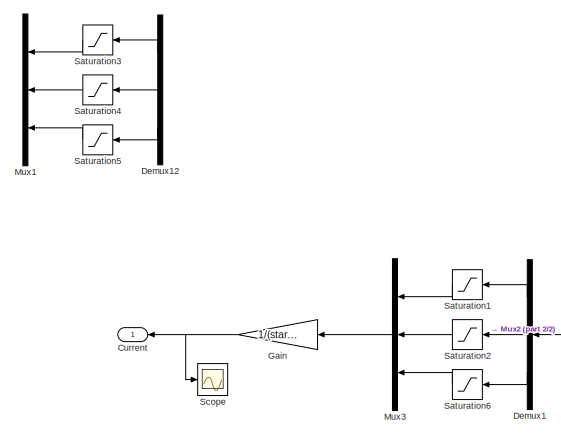
[diagram: StarshotACS/Orientation controller - part 1/2, left side, full height]
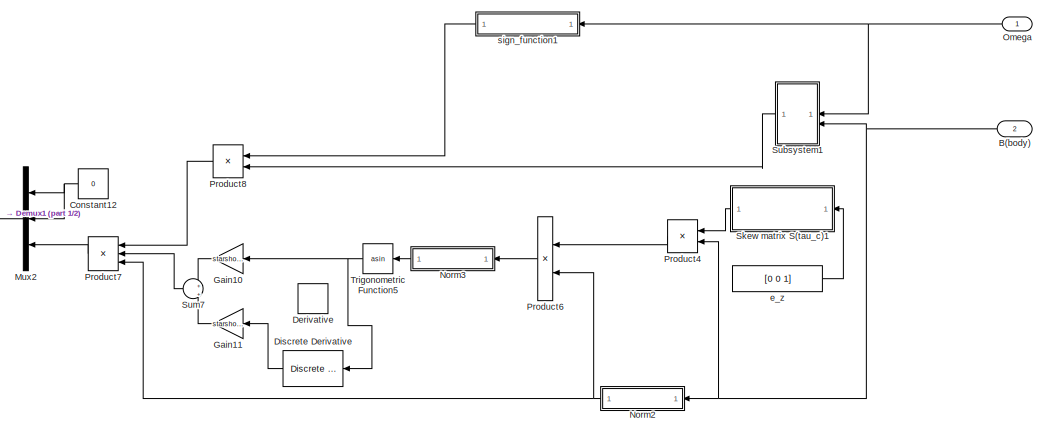
[diagram: StarshotACS/Orientation controller - part 2/2, right side, full height]
BLOCK [SubSystem] StarshotACS/Orientation controller
BLOCK [Inport] StarshotACS/Orientation controller/B(body)
  NameLocation = top
  Port = 2
BLOCK [Constant] StarshotACS/Orientation controller/Constant12
  Value = 0
BLOCK [Outport] StarshotACS/Orientation controller/Current
BLOCK [Demux] StarshotACS/Orientation controller/Demux1
  Outputs = 3
BLOCK [Demux] StarshotACS/Orientation controller/Demux12
  Commented = on
  Outputs = 3
BLOCK [Derivative] StarshotACS/Orientation controller/Derivative
  Commented = on
BLOCK [Reference] StarshotACS/Orientation controller/Discrete Derivative  REF=simulink/Discrete/Discrete Derivative
  NameLocation = top
  SourceBlock = simulink/Discrete/Discrete Derivative
  SourceType = Discrete Derivative
BLOCK [Gain] StarshotACS/Orientation controller/Gain
  Gain = 1/(starshot.magnetorq.A*starshot.magnetorq.n*starshot.magnetorq.k)
  NameLocation = top
BLOCK [Gain] StarshotACS/Orientation controller/Gain10
  Gain = starshot.controller.Kp*starshot.IC.massproperties.Izp
BLOCK [Gain] StarshotACS/Orientation controller/Gain11
  Gain = starshot.controller.Kd
BLOCK [Mux] StarshotACS/Orientation controller/Mux1
  Commented = on
  DisplayOption = bar
  Inputs = 3
BLOCK [Mux] StarshotACS/Orientation controller/Mux2
  DisplayOption = bar
  Inputs = 3
BLOCK [Mux] StarshotACS/Orientation controller/Mux3
  DisplayOption = bar
  Inputs = 3
BLOCK [SubSystem] StarshotACS/Orientation controller/Norm2
BLOCK [DotProduct] StarshotACS/Orientation controller/Norm2/Dot Product6
  OutDataTypeStr = Inherit: Inherit via internal rule
BLOCK [Sqrt] StarshotACS/Orientation controller/Norm2/Sqrt4
BLOCK [Outport] StarshotACS/Orientation controller/Norm2/norm(v)
BLOCK [Inport] StarshotACS/Orientation controller/Norm2/v
BLOCK [SubSystem] StarshotACS/Orientation controller/Norm3
BLOCK [DotProduct] StarshotACS/Orientation controller/Norm3/Dot Product6
  OutDataTypeStr = Inherit: Inherit via internal rule
BLOCK [Sqrt] StarshotACS/Orientation controller/Norm3/Sqrt4
BLOCK [Outport] StarshotACS/Orientation controller/Norm3/norm(v)
BLOCK [Inport] StarshotACS/Orientation controller/Norm3/v
BLOCK [Inport] StarshotACS/Orientation controller/Omega
BLOCK [Product] StarshotACS/Orientation controller/Product4
  Multiplication = Matrix(*)
BLOCK [Product] StarshotACS/Orientation controller/Product6
  Inputs = */
BLOCK [Product] StarshotACS/Orientation controller/Product7
  Inputs = **/
BLOCK [Product] StarshotACS/Orientation controller/Product8
  Inputs = **
BLOCK [Saturate] StarshotACS/Orientation controller/Saturation1
  LowerLimit = -starshot.magnetorq.m_max_x
  UpperLimit = starshot.magnetorq.m_max_x
BLOCK [Saturate] StarshotACS/Orientation controller/Saturation2
  LowerLimit = -starshot.magnetorq.m_max_y
  UpperLimit = starshot.magnetorq.m_max_y
BLOCK [Saturate] StarshotACS/Orientation controller/Saturation3
  Commented = on
  LowerLimit = -0.250
  UpperLimit = 0.250
BLOCK [Saturate] StarshotACS/Orientation controller/Saturation4
  Commented = on
  LowerLimit = -0.250
  UpperLimit = 0.250
BLOCK [Saturate] StarshotACS/Orientation controller/Saturation5
  Commented = on
  LowerLimit = -0.250
  UpperLimit = 0.250
BLOCK [Saturate] StarshotACS/Orientation controller/Saturation6
  LowerLimit = -starshot.magnetorq.m_max_z
  UpperLimit = starshot.magnetorq.m_max_z
BLOCK [Scope] StarshotACS/Orientation controller/Scope
  Floating = off
  NumInputPorts = 1
  ScopeSpecificationString = Simulink.scopes.TimeScopeBlockCfg
BLOCK [SubSystem] StarshotACS/Orientation controller/Skew matrix S(tau_c)1
BLOCK [Constant] StarshotACS/Orientation controller/Skew matrix S(tau_c)1/Constant3
  Value = 0
BLOCK [Demux] StarshotACS/Orientation controller/Skew matrix S(tau_c)1/Demux
  Outputs = 3
BLOCK [Gain] StarshotACS/Orientation controller/Skew matrix S(tau_c)1/Gain
  Gain = -1
BLOCK [Gain] StarshotACS/Orientation controller/Skew matrix S(tau_c)1/Gain1
  Gain = -1
BLOCK [Gain] StarshotACS/Orientation controller/Skew matrix S(tau_c)1/Gain2
  Gain = -1
BLOCK [Mux] StarshotACS/Orientation controller/Skew matrix S(tau_c)1/Mux
  DisplayOption = bar
  Inputs = 3
BLOCK [Mux] StarshotACS/Orientation controller/Skew matrix S(tau_c)1/Mux1
  DisplayOption = bar
  Inputs = 3
BLOCK [Mux] StarshotACS/Orientation controller/Skew matrix S(tau_c)1/Mux2
  DisplayOption = bar
  Inputs = 3
BLOCK [Outport] StarshotACS/Orientation controller/Skew matrix S(tau_c)1/S(omega)
BLOCK [Concatenate] StarshotACS/Orientation controller/Skew matrix S(tau_c)1/Vector Concatenate
  ConcatenateDimension = 2
  Mode = Multidimensional array
  NumInputs = 3
BLOCK [Inport] StarshotACS/Orientation controller/Skew matrix S(tau_c)1/omega
BLOCK [SubSystem] StarshotACS/Orientation controller/Subsystem1
BLOCK [Sum] StarshotACS/Orientation controller/Subsystem1/Add
  IconShape = rectangular
  Inputs = 3
BLOCK [Inport] StarshotACS/Orientation controller/Subsystem1/B(body)
  NameLocation = top
  Port = 2
BLOCK [Constant] StarshotACS/Orientation controller/Subsystem1/Constant3
BLOCK [Constant] StarshotACS/Orientation controller/Subsystem1/Constant4
  Value = -1
BLOCK [Demux] StarshotACS/Orientation controller/Subsystem1/Demux11
  Outputs = 3
BLOCK [Product] StarshotACS/Orientation controller/Subsystem1/Divide6
  Inputs = /*/
BLOCK [SubSystem] StarshotACS/Orientation controller/Subsystem1/Norm4
BLOCK [DotProduct] StarshotACS/Orientation controller/Subsystem1/Norm4/Dot Product6
  OutDataTypeStr = Inherit: Inherit via internal rule
BLOCK [Sqrt] StarshotACS/Orientation controller/Subsystem1/Norm4/Sqrt4
BLOCK [Outport] StarshotACS/Orientation controller/Subsystem1/Norm4/norm(v)
BLOCK [Inport] StarshotACS/Orientation controller/Subsystem1/Norm4/v
BLOCK [SubSystem] StarshotACS/Orientation controller/Subsystem1/Norm5
  NameLocation = left
BLOCK [DotProduct] StarshotACS/Orientation controller/Subsystem1/Norm5/Dot Product6
  OutDataTypeStr = Inherit: Inherit via internal rule
BLOCK [Sqrt] StarshotACS/Orientation controller/Subsystem1/Norm5/Sqrt4
BLOCK [Outport] StarshotACS/Orientation controller/Subsystem1/Norm5/norm(v)
BLOCK [Inport] StarshotACS/Orientation controller/Subsystem1/Norm5/v
BLOCK [Product] StarshotACS/Orientation controller/Subsystem1/Product3
BLOCK [Switch] StarshotACS/Orientation controller/Subsystem1/Switch
  Criteria = u2 > Threshold
  InputSameDT = off
  SaturateOnIntegerOverflow = off
  ZeroCross = off
BLOCK [Inport] StarshotACS/Orientation controller/Subsystem1/omega
BLOCK [Outport] StarshotACS/Orientation controller/Subsystem1/sign(cos)
BLOCK [Sum] StarshotACS/Orientation controller/Sum7
  Inputs = +|+
BLOCK [Trigonometry] StarshotACS/Orientation controller/Trigonometric Function5
  Operator = asin
BLOCK [Constant] StarshotACS/Orientation controller/e_z
  Value = [0 0 1]
BLOCK [SubSystem] StarshotACS/Orientation controller/sign_function1
BLOCK [Constant] StarshotACS/Orientation controller/sign_function1/Constant10
  Value = -1
BLOCK [Constant] StarshotACS/Orientation controller/sign_function1/Constant9
BLOCK [Selector] StarshotACS/Orientation controller/sign_function1/Selector
  IndexOptions = Index vector (dialog)
  Indices = [3]
  InputPortWidth = 3
  OutputSizes = 1
BLOCK [Switch] StarshotACS/Orientation controller/sign_function1/Switch1
  InputSameDT = off
  SaturateOnIntegerOverflow = off
  ZeroCross = off
BLOCK [Inport] StarshotACS/Orientation controller/sign_function1/omega
BLOCK [Outport] StarshotACS/Orientation controller/sign_function1/sign(omega_z)
BLOCK [SubSystem] StarshotACS/Subsystem
BLOCK [Trigonometry] StarshotACS/Subsystem/Acos
  Operator = acos
BLOCK [Inport] StarshotACS/Subsystem/B_body
BLOCK [Constant] StarshotACS/Subsystem/Constant
  Value = [0,0,1]
BLOCK [DotProduct] StarshotACS/Subsystem/Dot Product
  OutDataTypeStr = Inherit: Inherit via internal rule
BLOCK [Gain] StarshotACS/Subsystem/Multiply
  Gain = 180/pi
BLOCK [Reference] StarshotACS/Subsystem/Normalization  REF=dspmathops/Normalization
  SourceBlock = dspmathops/Normalization
  SourceType = Normalization
BLOCK [Saturate] StarshotACS/Subsystem/Saturation3
  LowerLimit = -1
  UpperLimit = 1
BLOCK [Outport] StarshotACS/Subsystem/pt error
BLOCK [Inport] StarshotACS/angularvelocity
BLOCK [Outport] StarshotACS/detumble
BLOCK [Outport] StarshotACS/point
  Port = 2
BLOCK [Outport] StarshotACS/pt_error
  Port = 3
BLOCK [Terminator] Terminator1
  Commented = on
BLOCK [Terminator] Terminator2
  Commented = on
BLOCK [Scope] pt_error plant
  Floating = off
  NumInputPorts = 1
  ScopeSpecificationString = Simulink.scopes.TimeScopeBlockCfg('CurrentConfiguration', extmgr.ConfigurationSet(extmgr.Configuration('Core','General UI',true),extmgr.Configuration('Core','Source UI',true),extmgr.Configuration('Sources','WiredSimulink',true,'DataLoggingVariableName','ScopeData2'),extmgr.Configuration('Visuals','Time Domain',true,'SerializedDisplays',{struct('MinYLimReal','71.62118','MaxYLimReal','191.87895','YL...<+1409ch>
BLOCK [Scope] pt_error starshot
  Floating = off
  NumInputPorts = 1
  ScopeSpecificationString = Simulink.scopes.TimeScopeBlockCfg('CurrentConfiguration', extmgr.ConfigurationSet(extmgr.Configuration('Core','General UI',true),extmgr.Configuration('Core','Source UI',true),extmgr.Configuration('Sources','WiredSimulink',true,'DataLoggingVariableName','ScopeData5'),extmgr.Configuration('Visuals','Time Domain',true,'SerializedDisplays',{struct('MinYLimReal','71.61862','MaxYLimReal','191.90198','YL...<+1438ch>
ANNOTATION Plant_OG: Kinematics
ANNOTATION Plant_OG: Dynamics
ANNOTATION Plant_OG: Earth's magnetic dipole
ANNOTATION Plant_OG: Torque
NET Manual Switch:1 -> Plant_OG:1, Scope:1
NET Plant_OG/     /(w_b)x(L_b)/Demux1:1 -> Plant_OG/     /(w_b)x(L_b)/Product3:2, Plant_OG/     /(w_b)x(L_b)/Product5:2
NET Plant_OG/     /(w_b)x(L_b)/Demux1:2 -> Plant_OG/     /(w_b)x(L_b)/Product1:2, Plant_OG/     /(w_b)x(L_b)/Product4:2
NET Plant_OG/     /(w_b)x(L_b)/Demux1:3 -> Plant_OG/     /(w_b)x(L_b)/Product2:2, Plant_OG/     /(w_b)x(L_b)/Product:2
NET Plant_OG/     /(w_b)x(L_b)/Demux:1 -> Plant_OG/     /(w_b)x(L_b)/Product2:1, Plant_OG/     /(w_b)x(L_b)/Product4:1
NET Plant_OG/     /(w_b)x(L_b)/Demux:2 -> Plant_OG/     /(w_b)x(L_b)/Product5:1, Plant_OG/     /(w_b)x(L_b)/Product:1
NET Plant_OG/     /(w_b)x(L_b)/Demux:3 -> Plant_OG/     /(w_b)x(L_b)/Product1:1, Plant_OG/     /(w_b)x(L_b)/Product3:1
LINE Plant_OG/     /(w_b)x(L_b)/Inv(I):1 -> Plant_OG/     /(w_b)x(L_b)/Demux1:1
LINE Plant_OG/     /(w_b)x(L_b)/L_b:1 -> Plant_OG/     /(w_b)x(L_b)/Inv(I):1
LINE Plant_OG/     /(w_b)x(L_b)/Mux:1 -> Plant_OG/     /(w_b)x(L_b)/(w_b)x(L_b):1
LINE Plant_OG/     /(w_b)x(L_b)/Product1:1 -> Plant_OG/     /(w_b)x(L_b)/Sum:2
LINE Plant_OG/     /(w_b)x(L_b)/Product2:1 -> Plant_OG/     /(w_b)x(L_b)/Sum1:1
LINE Plant_OG/     /(w_b)x(L_b)/Product3:1 -> Plant_OG/     /(w_b)x(L_b)/Sum1:2
LINE Plant_OG/     /(w_b)x(L_b)/Product4:1 -> Plant_OG/     /(w_b)x(L_b)/Sum2:1
LINE Plant_OG/     /(w_b)x(L_b)/Product5:1 -> Plant_OG/     /(w_b)x(L_b)/Sum2:2
LINE Plant_OG/     /(w_b)x(L_b)/Product:1 -> Plant_OG/     /(w_b)x(L_b)/Sum:1
LINE Plant_OG/     /(w_b)x(L_b)/Sum1:1 -> Plant_OG/     /(w_b)x(L_b)/Mux:2
LINE Plant_OG/     /(w_b)x(L_b)/Sum2:1 -> Plant_OG/     /(w_b)x(L_b)/Mux:3
LINE Plant_OG/     /(w_b)x(L_b)/Sum:1 -> Plant_OG/     /(w_b)x(L_b)/Mux:1
LINE Plant_OG/     /(w_b)x(L_b)/w_b:1 -> Plant_OG/     /(w_b)x(L_b)/Demux:1
LINE Plant_OG/     /(w_b)x(L_b):1 -> Plant_OG/     /Sum12:2
NET Plant_OG/     /Demux16:1 -> Plant_OG/     /Angular velocity:1, Plant_OG/     /XY Graph:1
NET Plant_OG/     /Demux16:2 -> Plant_OG/     /Angular velocity:2, Plant_OG/     /XY Graph:2
LINE Plant_OG/     /Demux16:3 -> Plant_OG/     /Angular velocity:3
NET Plant_OG/     /Integrator6:1 -> Plant_OG/     /(w_b)x(L_b):1, Plant_OG/     /(w_b)x(L_b):2, Plant_OG/     /Demux16:1, Plant_OG/     /To Workspace1:1, Plant_OG/     /omega:1
LINE Plant_OG/     /Inv(I):1 -> Plant_OG/     /Integrator6:1
LINE Plant_OG/     /Sum12:1 -> Plant_OG/     /Inv(I):1
LINE Plant_OG/     /T:1 -> Plant_OG/     /Sum12:1
NET Plant_OG/     :1 -> Plant_OG/   :1, Plant_OG/Scope:1, Plant_OG/angular velocity w:1
LINE Plant_OG/   /Demux13:1 -> Plant_OG/   /Quaternion:1
LINE Plant_OG/   /Demux13:2 -> Plant_OG/   /Quaternion:2
LINE Plant_OG/   /Demux13:3 -> Plant_OG/   /Quaternion:3
LINE Plant_OG/   /Demux13:4 -> Plant_OG/   /Quaternion:4
LINE Plant_OG/   /Demux18:1 -> Plant_OG/   /Euler angles:1
LINE Plant_OG/   /Demux18:2 -> Plant_OG/   /Euler angles:2
LINE Plant_OG/   /Demux18:3 -> Plant_OG/   /Euler angles:3
NET Plant_OG/   /Gain18:1 -> Plant_OG/   /Demux18:1, Plant_OG/   /To Workspace2:1
LINE Plant_OG/   /Integrator7:1 -> Plant_OG/   /Normalized quat:1
LINE Plant_OG/   /Mux10:1 -> Plant_OG/   /Integrator7:1
NET Plant_OG/   /Mux3:1 -> Plant_OG/   /qd(0):1, Plant_OG/   /qd(1):1, Plant_OG/   /qd(2):1, Plant_OG/   /qd(3):1
LINE Plant_OG/   /Normalized quat/Modulo1/Demux2:1 -> Plant_OG/   /Normalized quat/Modulo1/Math Function1:1
LINE Plant_OG/   /Normalized quat/Modulo1/Demux2:2 -> Plant_OG/   /Normalized quat/Modulo1/Math Function3:1
LINE Plant_OG/   /Normalized quat/Modulo1/Demux2:3 -> Plant_OG/   /Normalized quat/Modulo1/Math Function4:1
LINE Plant_OG/   /Normalized quat/Modulo1/Demux2:4 -> Plant_OG/   /Normalized quat/Modulo1/Math Function2:1
LINE Plant_OG/   /Normalized quat/Modulo1/Math Function1:1 -> Plant_OG/   /Normalized quat/Modulo1/Sum5:1
LINE Plant_OG/   /Normalized quat/Modulo1/Math Function2:1 -> Plant_OG/   /Normalized quat/Modulo1/Sum5:4
LINE Plant_OG/   /Normalized quat/Modulo1/Math Function3:1 -> Plant_OG/   /Normalized quat/Modulo1/Sum5:2
LINE Plant_OG/   /Normalized quat/Modulo1/Math Function4:1 -> Plant_OG/   /Normalized quat/Modulo1/Sum5:3
LINE Plant_OG/   /Normalized quat/Modulo1/Math Function5:1 -> Plant_OG/   /Normalized quat/Modulo1/Module q:1
LINE Plant_OG/   /Normalized quat/Modulo1/Sum5:1 -> Plant_OG/   /Normalized quat/Modulo1/Math Function5:1
LINE Plant_OG/   /Normalized quat/Modulo1/q:1 -> Plant_OG/   /Normalized quat/Modulo1/Demux2:1
LINE Plant_OG/   /Normalized quat/Modulo1:1 -> Plant_OG/   /Normalized quat/Product2:2
LINE Plant_OG/   /Normalized quat/Product2:1 -> Plant_OG/   /Normalized quat/q^:1
NET Plant_OG/   /Normalized quat/q:1 -> Plant_OG/   /Normalized quat/Modulo1:1, Plant_OG/   /Normalized quat/Product2:1
NET Plant_OG/   /Normalized quat:1 -> Plant_OG/   /Demux13:1, Plant_OG/   /Mux3:2, Plant_OG/   /Quaternions to Rotation Angles:1, Plant_OG/   /To Workspace6:1, Plant_OG/   /quaternion:1
LINE Plant_OG/   /Quaternions to Rotation Angles:1 -> Plant_OG/   /Gain18:1
LINE Plant_OG/   /omega:1 -> Plant_OG/   /Mux3:1
LINE Plant_OG/   /qd(0):1 -> Plant_OG/   /Mux10:1
LINE Plant_OG/   /qd(1):1 -> Plant_OG/   /Mux10:2
LINE Plant_OG/   /qd(2):1 -> Plant_OG/   /Mux10:3
LINE Plant_OG/   /qd(3):1 -> Plant_OG/   /Mux10:4
LINE Plant_OG/   :1 -> Plant_OG/quat to DCM:1
NET Plant_OG/ / :1 -> Plant_OG/ /Mux6:1, Plant_OG/ /Mux6:2, Plant_OG/ /Mux6:3
LINE Plant_OG/ /Constant1:1 -> Plant_OG/ /Divide2:1
LINE Plant_OG/ /Constant8:1 -> Plant_OG/ /Sum5:1
NET Plant_OG/ /Demux7:1 -> Plant_OG/ /Math Function4:1, Plant_OG/ /Math Function5:1
NET Plant_OG/ /Demux7:2 -> Plant_OG/ /Math Function3:1, Plant_OG/ /Math Function6:1
NET Plant_OG/ /Demux7:3 -> Plant_OG/ /Math Function7:1, Plant_OG/ /Trigonometric Function3:1
LINE Plant_OG/ /Demux9:1 -> Plant_OG/ /Earth's magnetic field (ECI):1
LINE Plant_OG/ /Demux9:2 -> Plant_OG/ /Earth's magnetic field (ECI):2
LINE Plant_OG/ /Demux9:3 -> Plant_OG/ /Earth's magnetic field (ECI):3
NET Plant_OG/ /Dipole->ECI/-theta:1 -> Plant_OG/ /Dipole->ECI/Trigonometric Function5:1, Plant_OG/ /Dipole->ECI/Trigonometric Function6:1, Plant_OG/ /Dipole->ECI/Trigonometric Function7:1, Plant_OG/ /Dipole->ECI/Trigonometric Function8:1
LINE Plant_OG/ /Dipole->ECI/B_r,B_theta:1 -> Plant_OG/ /Dipole->ECI/Demux8:1
NET Plant_OG/ /Dipole->ECI/Demux8:1 -> Plant_OG/ /Dipole->ECI/Product1:2, Plant_OG/ /Dipole->ECI/Product3:2
NET Plant_OG/ /Dipole->ECI/Demux8:2 -> Plant_OG/ /Dipole->ECI/Product2:2, Plant_OG/ /Dipole->ECI/Product4:2
LINE Plant_OG/ /Dipole->ECI/Demux:1 -> Plant_OG/ /Dipole->ECI/Trigonometric Function:2
LINE Plant_OG/ /Dipole->ECI/Demux:2 -> Plant_OG/ /Dipole->ECI/Trigonometric Function:1
LINE Plant_OG/ /Dipole->ECI/Demux:3 -> Plant_OG/ /Dipole->ECI/Terminator:1
LINE Plant_OG/ /Dipole->ECI/Divide1:1 -> Plant_OG/ /Dipole->ECI/Mux:1
LINE Plant_OG/ /Dipole->ECI/Divide:1 -> Plant_OG/ /Dipole->ECI/Mux:2
LINE Plant_OG/ /Dipole->ECI/Mux:1 -> Plant_OG/ /Dipole->ECI/B:1
LINE Plant_OG/ /Dipole->ECI/Product1:1 -> Plant_OG/ /Dipole->ECI/Sum5:1
LINE Plant_OG/ /Dipole->ECI/Product2:1 -> Plant_OG/ /Dipole->ECI/Sum5:2
LINE Plant_OG/ /Dipole->ECI/Product3:1 -> Plant_OG/ /Dipole->ECI/Sum6:2
LINE Plant_OG/ /Dipole->ECI/Product4:1 -> Plant_OG/ /Dipole->ECI/Sum6:1
LINE Plant_OG/ /Dipole->ECI/Sum5:1 -> Plant_OG/ /Dipole->ECI/Mux:3
NET Plant_OG/ /Dipole->ECI/Sum6:1 -> Plant_OG/ /Dipole->ECI/Divide1:1, Plant_OG/ /Dipole->ECI/Divide:1
LINE Plant_OG/ /Dipole->ECI/Trigonometric Function1:1 -> Plant_OG/ /Dipole->ECI/Divide1:2
LINE Plant_OG/ /Dipole->ECI/Trigonometric Function2:1 -> Plant_OG/ /Dipole->ECI/Divide:2
LINE Plant_OG/ /Dipole->ECI/Trigonometric Function5:1 -> Plant_OG/ /Dipole->ECI/Product1:1
LINE Plant_OG/ /Dipole->ECI/Trigonometric Function6:1 -> Plant_OG/ /Dipole->ECI/Product2:1
LINE Plant_OG/ /Dipole->ECI/Trigonometric Function7:1 -> Plant_OG/ /Dipole->ECI/Product3:1
LINE Plant_OG/ /Dipole->ECI/Trigonometric Function8:1 -> Plant_OG/ /Dipole->ECI/Product4:1
NET Plant_OG/ /Dipole->ECI/Trigonometric Function:1 -> Plant_OG/ /Dipole->ECI/Trigonometric Function1:1, Plant_OG/ /Dipole->ECI/Trigonometric Function2:1
LINE Plant_OG/ /Dipole->ECI/r:1 -> Plant_OG/ /Dipole->ECI/Demux:1
NET Plant_OG/ /Dipole->ECI:1 -> Plant_OG/ /B_ECI:1, Plant_OG/ /Demux9:1
NET Plant_OG/ /Divide2:1 -> Plant_OG/ /Math Function8:1, Plant_OG/ /Product:2
LINE Plant_OG/ /Divide3:1 -> Plant_OG/ /Mux4:1
LINE Plant_OG/ /Divide4:1 -> Plant_OG/ /Mux4:2
NET Plant_OG/ /Gain4:1 -> Plant_OG/ /Divide4:1, Plant_OG/ /Gain5:1
LINE Plant_OG/ /Gain5:1 -> Plant_OG/ /Divide3:1
LINE Plant_OG/ /Gain6:1 -> Plant_OG/ /Dipole->ECI:2
LINE Plant_OG/ /Math Function3:1 -> Plant_OG/ /Sum3:2
LINE Plant_OG/ /Math Function4:1 -> Plant_OG/ /Sum3:1
LINE Plant_OG/ /Math Function5:1 -> Plant_OG/ /Sum4:1
LINE Plant_OG/ /Math Function6:1 -> Plant_OG/ /Sum4:2
LINE Plant_OG/ /Math Function7:1 -> Plant_OG/ /Sum4:3
LINE Plant_OG/ /Math Function8:1 -> Plant_OG/ /Product:1
LINE Plant_OG/ /Mux4:1 -> Plant_OG/ /Dipole->ECI:1
NET Plant_OG/ /Mux6:1 -> Plant_OG/ /Demux7:1, Plant_OG/ /Dipole->ECI:3
LINE Plant_OG/ /Product:1 -> Plant_OG/ /Gain4:1
LINE Plant_OG/ /Sqrt2:1 -> Plant_OG/ /Trigonometric Function3:2
LINE Plant_OG/ /Sqrt3:1 -> Plant_OG/ /Divide2:2
LINE Plant_OG/ /Sum3:1 -> Plant_OG/ /Sqrt2:1
LINE Plant_OG/ /Sum4:1 -> Plant_OG/ /Sqrt3:1
NET Plant_OG/ /Sum5:1 -> Plant_OG/ /Gain6:1, Plant_OG/ /Trigonometric Function2:1, Plant_OG/ /Trigonometric Function4:1
LINE Plant_OG/ /Trigonometric Function2:1 -> Plant_OG/ /Divide3:2
LINE Plant_OG/ /Trigonometric Function3:1 -> Plant_OG/ /Sum5:2
LINE Plant_OG/ /Trigonometric Function4:1 -> Plant_OG/ /Divide4:2
LINE Plant_OG/ :1 -> Plant_OG/Matrix Multiply:2
LINE Plant_OG/Demux4:1 -> Plant_OG/Earth's magnetic field (body):1
LINE Plant_OG/Demux4:2 -> Plant_OG/Earth's magnetic field (body):2
LINE Plant_OG/Demux4:3 -> Plant_OG/Earth's magnetic field (body):3
LINE Plant_OG/Demux8:1 -> Plant_OG/Saturation:1
LINE Plant_OG/Demux8:2 -> Plant_OG/Saturation1:1
LINE Plant_OG/Demux8:3 -> Plant_OG/Saturation2:1
LINE Plant_OG/Gain:1 -> Plant_OG/Demux8:1
NET Plant_OG/Matrix Multiply:1 -> Plant_OG/B_body:1, Plant_OG/Demux4:1, Plant_OG/Product2:2, Plant_OG/Subsystem:1, Plant_OG/To Workspace4:1
LINE Plant_OG/Mux9:1 -> Plant_OG/Skew matrix S(m):1
LINE Plant_OG/Orbital Dynamics/Constant:1 -> Plant_OG/Orbital Dynamics/Gain1:1
NET Plant_OG/Orbital Dynamics/Demux1:1 -> Plant_OG/Orbital Dynamics/Dot Product:1, Plant_OG/Orbital Dynamics/Dot Product:2
NET Plant_OG/Orbital Dynamics/Demux1:2 -> Plant_OG/Orbital Dynamics/Dot Product1:1, Plant_OG/Orbital Dynamics/Dot Product1:2
NET Plant_OG/Orbital Dynamics/Demux1:3 -> Plant_OG/Orbital Dynamics/Dot Product2:1, Plant_OG/Orbital Dynamics/Dot Product2:2
LINE Plant_OG/Orbital Dynamics/Demux2:1 -> Plant_OG/Orbital Dynamics/Dot Product5:2
LINE Plant_OG/Orbital Dynamics/Demux2:2 -> Plant_OG/Orbital Dynamics/Dot Product4:2
LINE Plant_OG/Orbital Dynamics/Demux2:3 -> Plant_OG/Orbital Dynamics/Dot Product3:2
NET Plant_OG/Orbital Dynamics/Demux3:1 -> Plant_OG/Orbital Dynamics/Scope:1, Plant_OG/Orbital Dynamics/x_ECI:1
NET Plant_OG/Orbital Dynamics/Demux3:2 -> Plant_OG/Orbital Dynamics/Scope:2, Plant_OG/Orbital Dynamics/y_ECI:1
NET Plant_OG/Orbital Dynamics/Demux3:3 -> Plant_OG/Orbital Dynamics/Scope:3, Plant_OG/Orbital Dynamics/z_ECI:1
LINE Plant_OG/Orbital Dynamics/Demux:1 -> Plant_OG/Orbital Dynamics/Integrator:1
LINE Plant_OG/Orbital Dynamics/Demux:2 -> Plant_OG/Orbital Dynamics/Integrator1:1
LINE Plant_OG/Orbital Dynamics/Demux:3 -> Plant_OG/Orbital Dynamics/Integrator2:1
LINE Plant_OG/Orbital Dynamics/Divide1:1 -> Plant_OG/Orbital Dynamics/Demux2:1
NET Plant_OG/Orbital Dynamics/Divide:1 -> Plant_OG/Orbital Dynamics/Dot Product3:1, Plant_OG/Orbital Dynamics/Dot Product4:1, Plant_OG/Orbital Dynamics/Dot Product5:1
LINE Plant_OG/Orbital Dynamics/Dot Product1:1 -> Plant_OG/Orbital Dynamics/Sum:2
LINE Plant_OG/Orbital Dynamics/Dot Product2:1 -> Plant_OG/Orbital Dynamics/Sum:3
LINE Plant_OG/Orbital Dynamics/Dot Product3:1 -> Plant_OG/Orbital Dynamics/Integrator5:1
LINE Plant_OG/Orbital Dynamics/Dot Product4:1 -> Plant_OG/Orbital Dynamics/Integrator4:1
LINE Plant_OG/Orbital Dynamics/Dot Product5:1 -> Plant_OG/Orbital Dynamics/Integrator3:1
LINE Plant_OG/Orbital Dynamics/Dot Product:1 -> Plant_OG/Orbital Dynamics/Sum:1
LINE Plant_OG/Orbital Dynamics/Gain1:1 -> Plant_OG/Orbital Dynamics/Gain2:1
LINE Plant_OG/Orbital Dynamics/Gain2:1 -> Plant_OG/Orbital Dynamics/Divide:2
LINE Plant_OG/Orbital Dynamics/Integrator1:1 -> Plant_OG/Orbital Dynamics/Mux:2
LINE Plant_OG/Orbital Dynamics/Integrator2:1 -> Plant_OG/Orbital Dynamics/Mux:3
LINE Plant_OG/Orbital Dynamics/Integrator3:1 -> Plant_OG/Orbital Dynamics/Mux1:1
LINE Plant_OG/Orbital Dynamics/Integrator4:1 -> Plant_OG/Orbital Dynamics/Mux1:2
LINE Plant_OG/Orbital Dynamics/Integrator5:1 -> Plant_OG/Orbital Dynamics/Mux1:3
LINE Plant_OG/Orbital Dynamics/Integrator:1 -> Plant_OG/Orbital Dynamics/Mux:1
LINE Plant_OG/Orbital Dynamics/Math Function:1 -> Plant_OG/Orbital Dynamics/Divide:1
LINE Plant_OG/Orbital Dynamics/Mux1:1 -> Plant_OG/Orbital Dynamics/Demux:1
NET Plant_OG/Orbital Dynamics/Mux:1 -> Plant_OG/Orbital Dynamics/Demux1:1, Plant_OG/Orbital Dynamics/Demux3:1, Plant_OG/Orbital Dynamics/Divide1:2
NET Plant_OG/Orbital Dynamics/Sqrt:1 -> Plant_OG/Orbital Dynamics/Divide1:1, Plant_OG/Orbital Dynamics/Math Function:1
LINE Plant_OG/Orbital Dynamics/Sum:1 -> Plant_OG/Orbital Dynamics/Sqrt:1
LINE Plant_OG/Orbital Dynamics:1 -> Plant_OG/ :1
LINE Plant_OG/Orbital Dynamics:2 -> Plant_OG/ :2
LINE Plant_OG/Orbital Dynamics:3 -> Plant_OG/ :3
LINE Plant_OG/Product2:1 -> Plant_OG/     :1
LINE Plant_OG/Saturation1:1 -> Plant_OG/Mux9:2
LINE Plant_OG/Saturation2:1 -> Plant_OG/Mux9:3
LINE Plant_OG/Saturation:1 -> Plant_OG/Mux9:1
NET Plant_OG/Skew matrix S(m)/Constant3:1 -> Plant_OG/Skew matrix S(m)/Mux1:2, Plant_OG/Skew matrix S(m)/Mux2:3, Plant_OG/Skew matrix S(m)/Mux:1
NET Plant_OG/Skew matrix S(m)/Demux:1 -> Plant_OG/Skew matrix S(m)/Gain2:1, Plant_OG/Skew matrix S(m)/Mux1:3
NET Plant_OG/Skew matrix S(m)/Demux:2 -> Plant_OG/Skew matrix S(m)/Gain:1, Plant_OG/Skew matrix S(m)/Mux2:1
NET Plant_OG/Skew matrix S(m)/Demux:3 -> Plant_OG/Skew matrix S(m)/Gain1:1, Plant_OG/Skew matrix S(m)/Mux:2
LINE Plant_OG/Skew matrix S(m)/Gain1:1 -> Plant_OG/Skew matrix S(m)/Mux1:1
LINE Plant_OG/Skew matrix S(m)/Gain2:1 -> Plant_OG/Skew matrix S(m)/Mux2:2
LINE Plant_OG/Skew matrix S(m)/Gain:1 -> Plant_OG/Skew matrix S(m)/Mux:3
LINE Plant_OG/Skew matrix S(m)/Mux1:1 -> Plant_OG/Skew matrix S(m)/Vector Concatenate:2
LINE Plant_OG/Skew matrix S(m)/Mux2:1 -> Plant_OG/Skew matrix S(m)/Vector Concatenate:3
LINE Plant_OG/Skew matrix S(m)/Mux:1 -> Plant_OG/Skew matrix S(m)/Vector Concatenate:1
LINE Plant_OG/Skew matrix S(m)/Vector Concatenate:1 -> Plant_OG/Skew matrix S(m)/S(m):1
LINE Plant_OG/Skew matrix S(m)/m:1 -> Plant_OG/Skew matrix S(m)/Demux:1
LINE Plant_OG/Skew matrix S(m):1 -> Plant_OG/Product2:1
LINE Plant_OG/Subsystem/Acos:1 -> Plant_OG/Subsystem/Multiply:1
LINE Plant_OG/Subsystem/B_body:1 -> Plant_OG/Subsystem/Normalization:1
LINE Plant_OG/Subsystem/Constant:1 -> Plant_OG/Subsystem/Dot Product:2
LINE Plant_OG/Subsystem/Dot Product:1 -> Plant_OG/Subsystem/Saturation3:1
LINE Plant_OG/Subsystem/Multiply:1 -> Plant_OG/Subsystem/pt error:1
LINE Plant_OG/Subsystem/Normalization:1 -> Plant_OG/Subsystem/Dot Product:1
LINE Plant_OG/Subsystem/Saturation3:1 -> Plant_OG/Subsystem/Acos:1
LINE Plant_OG/Subsystem:1 -> Plant_OG/pt_error:1
LINE Plant_OG/current:1 -> Plant_OG/Gain:1
LINE Plant_OG/quat to DCM/Demux:1 -> Plant_OG/quat to DCM/Mux:1
LINE Plant_OG/quat to DCM/Demux:2 -> Plant_OG/quat to DCM/Mux:2
LINE Plant_OG/quat to DCM/Demux:3 -> Plant_OG/quat to DCM/Mux:3
NET Plant_OG/quat to DCM/Demux:4 -> Plant_OG/quat to DCM/Product1:1, Plant_OG/quat to DCM/Product1:2, Plant_OG/quat to DCM/Product:2
LINE Plant_OG/quat to DCM/Gain1:1 -> Plant_OG/quat to DCM/Sum8:2
LINE Plant_OG/quat to DCM/Gain2:1 -> Plant_OG/quat to DCM/Sum8:1
LINE Plant_OG/quat to DCM/Matrix Gain:1 -> Plant_OG/quat to DCM/Sum8:3
NET Plant_OG/quat to DCM/Mux:1 -> Plant_OG/quat to DCM/Subsystem:1, Plant_OG/quat to DCM/T1:1, Plant_OG/quat to DCM/T2:1, Plant_OG/quat to DCM/qTq:2, Plant_OG/quat to DCM/qqT:1
LINE Plant_OG/quat to DCM/Product1:1 -> Plant_OG/quat to DCM/Sum1:1
LINE Plant_OG/quat to DCM/Product:1 -> Plant_OG/quat to DCM/Gain1:1
LINE Plant_OG/quat to DCM/Subsystem/3x3:1 -> Plant_OG/quat to DCM/Subsystem/Out1:1
NET Plant_OG/quat to DCM/Subsystem/Demux:1 -> Plant_OG/quat to DCM/Subsystem/Gain2:1, Plant_OG/quat to DCM/Subsystem/Mux:6
NET Plant_OG/quat to DCM/Subsystem/Demux:2 -> Plant_OG/quat to DCM/Subsystem/Gain:1, Plant_OG/quat to DCM/Subsystem/Mux:7
NET Plant_OG/quat to DCM/Subsystem/Demux:3 -> Plant_OG/quat to DCM/Subsystem/Gain1:1, Plant_OG/quat to DCM/Subsystem/Mux:2
LINE Plant_OG/quat to DCM/Subsystem/Gain1:1 -> Plant_OG/quat to DCM/Subsystem/Mux:4
LINE Plant_OG/quat to DCM/Subsystem/Gain2:1 -> Plant_OG/quat to DCM/Subsystem/Mux:8
LINE Plant_OG/quat to DCM/Subsystem/Gain:1 -> Plant_OG/quat to DCM/Subsystem/Mux:3
LINE Plant_OG/quat to DCM/Subsystem/In1:1 -> Plant_OG/quat to DCM/Subsystem/Demux:1
LINE Plant_OG/quat to DCM/Subsystem/Mux:1 -> Plant_OG/quat to DCM/Subsystem/3x3:1
NET Plant_OG/quat to DCM/Subsystem/diag 0 :1 -> Plant_OG/quat to DCM/Subsystem/Mux:1, Plant_OG/quat to DCM/Subsystem/Mux:5, Plant_OG/quat to DCM/Subsystem/Mux:9
LINE Plant_OG/quat to DCM/Subsystem:1 -> Plant_OG/quat to DCM/Product:1
LINE Plant_OG/quat to DCM/Sum1:1 -> Plant_OG/quat to DCM/Matrix Gain:1
LINE Plant_OG/quat to DCM/Sum8:1 -> Plant_OG/quat to DCM/DCM:1
LINE Plant_OG/quat to DCM/T1:1 -> Plant_OG/quat to DCM/qqT:2
LINE Plant_OG/quat to DCM/T2:1 -> Plant_OG/quat to DCM/qTq:1
LINE Plant_OG/quat to DCM/e0 e1 e2 e3:1 -> Plant_OG/quat to DCM/Demux:1
LINE Plant_OG/quat to DCM/qTq:1 -> Plant_OG/quat to DCM/Sum1:2
LINE Plant_OG/quat to DCM/qqT:1 -> Plant_OG/quat to DCM/Gain2:1
LINE Plant_OG/quat to DCM:1 -> Plant_OG/Matrix Multiply:1
LINE Plant_OG:1 -> StarshotACS:1
LINE Plant_OG:2 -> StarshotACS:2
LINE Plant_OG:3 -> pt_error plant:1
LINE Plantv5/Cross Product:1 -> Plantv5/Dynamics:2
LINE Plantv5/Demux4:1 -> Plantv5/Discrete-Time Integrator:1
LINE Plantv5/Demux4:2 -> Plantv5/Discrete-Time Integrator1:1
LINE Plantv5/Demux4:3 -> Plantv5/Discrete-Time Integrator2:1
LINE Plantv5/Demux:1 -> Plantv5/Scope:1
LINE Plantv5/Demux:2 -> Plantv5/Scope:2
LINE Plantv5/Demux:3 -> Plantv5/Scope:3
LINE Plantv5/Discrete-Time Integrator1:1 -> Plantv5/Mux3:2
LINE Plantv5/Discrete-Time Integrator2:1 -> Plantv5/Mux3:3
LINE Plantv5/Discrete-Time Integrator:1 -> Plantv5/Mux3:1
NET Plantv5/Dynamics/Angular Velocity:1 -> Plantv5/Dynamics/Cross Product:1, Plantv5/Dynamics/Product:2
LINE Plantv5/Dynamics/Constant1:1 -> Plantv5/Dynamics/Product1:1
LINE Plantv5/Dynamics/Constant:1 -> Plantv5/Dynamics/Product:1
LINE Plantv5/Dynamics/Cross Product:1 -> Plantv5/Dynamics/Sum:2
LINE Plantv5/Dynamics/External Torque:1 -> Plantv5/Dynamics/Sum:1
LINE Plantv5/Dynamics/Product1:1 -> Plantv5/Dynamics/Angular Accel:1
LINE Plantv5/Dynamics/Product:1 -> Plantv5/Dynamics/Cross Product:2
LINE Plantv5/Dynamics/Sum:1 -> Plantv5/Dynamics/Product1:2
LINE Plantv5/Dynamics:1 -> Plantv5/Demux4:1
LINE Plantv5/Gain:1 -> Plantv5/Cross Product:1
LINE Plantv5/Magnetic Field Model/Constant1:1 -> Plantv5/Magnetic Field Model/Divide2:1
LINE Plantv5/Magnetic Field Model/Constant8:1 -> Plantv5/Magnetic Field Model/Sum5:1
NET Plantv5/Magnetic Field Model/Demux7:1 -> Plantv5/Magnetic Field Model/Math Function4:1, Plantv5/Magnetic Field Model/Math Function5:1
NET Plantv5/Magnetic Field Model/Demux7:2 -> Plantv5/Magnetic Field Model/Math Function3:1, Plantv5/Magnetic Field Model/Math Function6:1
NET Plantv5/Magnetic Field Model/Demux7:3 -> Plantv5/Magnetic Field Model/Math Function7:1, Plantv5/Magnetic Field Model/Trigonometric Function3:1
NET Plantv5/Magnetic Field Model/Dipole->ECI/-theta:1 -> Plantv5/Magnetic Field Model/Dipole->ECI/Trigonometric Function5:1, Plantv5/Magnetic Field Model/Dipole->ECI/Trigonometric Function6:1, Plantv5/Magnetic Field Model/Dipole->ECI/Trigonometric Function7:1, Plantv5/Magnetic Field Model/Dipole->ECI/Trigonometric Function8:1
LINE Plantv5/Magnetic Field Model/Dipole->ECI/B_r,B_theta:1 -> Plantv5/Magnetic Field Model/Dipole->ECI/Demux8:1
NET Plantv5/Magnetic Field Model/Dipole->ECI/Demux8:1 -> Plantv5/Magnetic Field Model/Dipole->ECI/Product1:2, Plantv5/Magnetic Field Model/Dipole->ECI/Product3:2
NET Plantv5/Magnetic Field Model/Dipole->ECI/Demux8:2 -> Plantv5/Magnetic Field Model/Dipole->ECI/Product2:2, Plantv5/Magnetic Field Model/Dipole->ECI/Product4:2
LINE Plantv5/Magnetic Field Model/Dipole->ECI/Demux:1 -> Plantv5/Magnetic Field Model/Dipole->ECI/Trigonometric Function:2
LINE Plantv5/Magnetic Field Model/Dipole->ECI/Demux:2 -> Plantv5/Magnetic Field Model/Dipole->ECI/Trigonometric Function:1
LINE Plantv5/Magnetic Field Model/Dipole->ECI/Demux:3 -> Plantv5/Magnetic Field Model/Dipole->ECI/Terminator:1
LINE Plantv5/Magnetic Field Model/Dipole->ECI/Divide1:1 -> Plantv5/Magnetic Field Model/Dipole->ECI/Mux:1
LINE Plantv5/Magnetic Field Model/Dipole->ECI/Divide:1 -> Plantv5/Magnetic Field Model/Dipole->ECI/Mux:2
LINE Plantv5/Magnetic Field Model/Dipole->ECI/Mux:1 -> Plantv5/Magnetic Field Model/Dipole->ECI/B:1
LINE Plantv5/Magnetic Field Model/Dipole->ECI/Product1:1 -> Plantv5/Magnetic Field Model/Dipole->ECI/Sum5:1
LINE Plantv5/Magnetic Field Model/Dipole->ECI/Product2:1 -> Plantv5/Magnetic Field Model/Dipole->ECI/Sum5:2
LINE Plantv5/Magnetic Field Model/Dipole->ECI/Product3:1 -> Plantv5/Magnetic Field Model/Dipole->ECI/Sum6:2
LINE Plantv5/Magnetic Field Model/Dipole->ECI/Product4:1 -> Plantv5/Magnetic Field Model/Dipole->ECI/Sum6:1
LINE Plantv5/Magnetic Field Model/Dipole->ECI/Sum5:1 -> Plantv5/Magnetic Field Model/Dipole->ECI/Mux:3
NET Plantv5/Magnetic Field Model/Dipole->ECI/Sum6:1 -> Plantv5/Magnetic Field Model/Dipole->ECI/Divide1:1, Plantv5/Magnetic Field Model/Dipole->ECI/Divide:1
LINE Plantv5/Magnetic Field Model/Dipole->ECI/Trigonometric Function1:1 -> Plantv5/Magnetic Field Model/Dipole->ECI/Divide1:2
LINE Plantv5/Magnetic Field Model/Dipole->ECI/Trigonometric Function2:1 -> Plantv5/Magnetic Field Model/Dipole->ECI/Divide:2
LINE Plantv5/Magnetic Field Model/Dipole->ECI/Trigonometric Function5:1 -> Plantv5/Magnetic Field Model/Dipole->ECI/Product1:1
LINE Plantv5/Magnetic Field Model/Dipole->ECI/Trigonometric Function6:1 -> Plantv5/Magnetic Field Model/Dipole->ECI/Product2:1
LINE Plantv5/Magnetic Field Model/Dipole->ECI/Trigonometric Function7:1 -> Plantv5/Magnetic Field Model/Dipole->ECI/Product3:1
LINE Plantv5/Magnetic Field Model/Dipole->ECI/Trigonometric Function8:1 -> Plantv5/Magnetic Field Model/Dipole->ECI/Product4:1
NET Plantv5/Magnetic Field Model/Dipole->ECI/Trigonometric Function:1 -> Plantv5/Magnetic Field Model/Dipole->ECI/Trigonometric Function1:1, Plantv5/Magnetic Field Model/Dipole->ECI/Trigonometric Function2:1
LINE Plantv5/Magnetic Field Model/Dipole->ECI/r:1 -> Plantv5/Magnetic Field Model/Dipole->ECI/Demux:1
LINE Plantv5/Magnetic Field Model/Dipole->ECI:1 -> Plantv5/Magnetic Field Model/ECI_B:1
NET Plantv5/Magnetic Field Model/Divide2:1 -> Plantv5/Magnetic Field Model/Math Function8:1, Plantv5/Magnetic Field Model/Product:2
LINE Plantv5/Magnetic Field Model/Divide3:1 -> Plantv5/Magnetic Field Model/Mux4:1
LINE Plantv5/Magnetic Field Model/Divide4:1 -> Plantv5/Magnetic Field Model/Mux4:2
NET Plantv5/Magnetic Field Model/ECIxyz:1 -> Plantv5/Magnetic Field Model/Demux7:1, Plantv5/Magnetic Field Model/Dipole->ECI:3
NET Plantv5/Magnetic Field Model/Gain4:1 -> Plantv5/Magnetic Field Model/Divide4:1, Plantv5/Magnetic Field Model/Gain5:1
LINE Plantv5/Magnetic Field Model/Gain5:1 -> Plantv5/Magnetic Field Model/Divide3:1
LINE Plantv5/Magnetic Field Model/Gain6:1 -> Plantv5/Magnetic Field Model/Dipole->ECI:2
LINE Plantv5/Magnetic Field Model/Math Function3:1 -> Plantv5/Magnetic Field Model/Sum3:2
LINE Plantv5/Magnetic Field Model/Math Function4:1 -> Plantv5/Magnetic Field Model/Sum3:1
LINE Plantv5/Magnetic Field Model/Math Function5:1 -> Plantv5/Magnetic Field Model/Sum4:1
LINE Plantv5/Magnetic Field Model/Math Function6:1 -> Plantv5/Magnetic Field Model/Sum4:2
LINE Plantv5/Magnetic Field Model/Math Function7:1 -> Plantv5/Magnetic Field Model/Sum4:3
LINE Plantv5/Magnetic Field Model/Math Function8:1 -> Plantv5/Magnetic Field Model/Product:1
LINE Plantv5/Magnetic Field Model/Mux4:1 -> Plantv5/Magnetic Field Model/Dipole->ECI:1
LINE Plantv5/Magnetic Field Model/Product:1 -> Plantv5/Magnetic Field Model/Gain4:1
LINE Plantv5/Magnetic Field Model/Sqrt2:1 -> Plantv5/Magnetic Field Model/Trigonometric Function3:2
LINE Plantv5/Magnetic Field Model/Sqrt3:1 -> Plantv5/Magnetic Field Model/Divide2:2
LINE Plantv5/Magnetic Field Model/Sum3:1 -> Plantv5/Magnetic Field Model/Sqrt2:1
LINE Plantv5/Magnetic Field Model/Sum4:1 -> Plantv5/Magnetic Field Model/Sqrt3:1
NET Plantv5/Magnetic Field Model/Sum5:1 -> Plantv5/Magnetic Field Model/Gain6:1, Plantv5/Magnetic Field Model/Trigonometric Function2:1, Plantv5/Magnetic Field Model/Trigonometric Function4:1
LINE Plantv5/Magnetic Field Model/Trigonometric Function2:1 -> Plantv5/Magnetic Field Model/Divide3:2
LINE Plantv5/Magnetic Field Model/Trigonometric Function3:1 -> Plantv5/Magnetic Field Model/Sum5:2
LINE Plantv5/Magnetic Field Model/Trigonometric Function4:1 -> Plantv5/Magnetic Field Model/Divide4:2
NET Plantv5/Magnetic Field Model:1 -> Plantv5/Matrix Multiply1:2, Plantv5/Matrix Multiply:2
LINE Plantv5/Matrix Multiply1:1 -> Plantv5/Cross Product:2
LINE Plantv5/Matrix Multiply:1 -> Plantv5/magnetic field:1
NET Plantv5/Mux3:1 -> Plantv5/Dynamics:1, Plantv5/Quaternion Integration:1, Plantv5/angular velocity:1
LINE Plantv5/Quaternion Integration/Discrete-Time Integrator1:1 -> Plantv5/Quaternion Integration/q_normalize:1
LINE Plantv5/Quaternion Integration/q_normalize/Dot Product:1 -> Plantv5/Quaternion Integration/q_normalize/Math Function:1
LINE Plantv5/Quaternion Integration/q_normalize/Math Function:1 -> Plantv5/Quaternion Integration/q_normalize/Product:2
LINE Plantv5/Quaternion Integration/q_normalize/Product:1 -> Plantv5/Quaternion Integration/q_normalize/q_out:1
NET Plantv5/Quaternion Integration/q_normalize/q_in:1 -> Plantv5/Quaternion Integration/q_normalize/Dot Product:1, Plantv5/Quaternion Integration/q_normalize/Dot Product:2, Plantv5/Quaternion Integration/q_normalize/Product:1
NET Plantv5/Quaternion Integration/q_normalize:1 -> Plantv5/Quaternion Integration/q_B//N:1, Plantv5/Quaternion Integration/qderiv:2
LINE Plantv5/Quaternion Integration/qderiv/Mux1:1 -> Plantv5/Quaternion Integration/qderiv/qd:1
NET Plantv5/Quaternion Integration/qderiv/Mux:1 -> Plantv5/Quaternion Integration/qderiv/qd1:1, Plantv5/Quaternion Integration/qderiv/qd2:1, Plantv5/Quaternion Integration/qderiv/qd3:1, Plantv5/Quaternion Integration/qderiv/qd4:1
LINE Plantv5/Quaternion Integration/qderiv/q:1 -> Plantv5/Quaternion Integration/qderiv/Mux:2
LINE Plantv5/Quaternion Integration/qderiv/qd1:1 -> Plantv5/Quaternion Integration/qderiv/Mux1:1
LINE Plantv5/Quaternion Integration/qderiv/qd2:1 -> Plantv5/Quaternion Integration/qderiv/Mux1:2
LINE Plantv5/Quaternion Integration/qderiv/qd3:1 -> Plantv5/Quaternion Integration/qderiv/Mux1:3
LINE Plantv5/Quaternion Integration/qderiv/qd4:1 -> Plantv5/Quaternion Integration/qderiv/Mux1:4
LINE Plantv5/Quaternion Integration/qderiv/w:1 -> Plantv5/Quaternion Integration/qderiv/Mux:1
LINE Plantv5/Quaternion Integration/qderiv:1 -> Plantv5/Quaternion Integration/Discrete-Time Integrator1:1
LINE Plantv5/Quaternion Integration/w B//N:1 -> Plantv5/Quaternion Integration/qderiv:1
NET Plantv5/Quaternion Integration:1 -> Plantv5/qtoQ1:1, Plantv5/qtoQ:1, Plantv5/quaternion:1
LINE Plantv5/Tranlational Dynamics/Constant:1 -> Plantv5/Tranlational Dynamics/Gain1:1
NET Plantv5/Tranlational Dynamics/Demux1:1 -> Plantv5/Tranlational Dynamics/Dot Product:1, Plantv5/Tranlational Dynamics/Dot Product:2
NET Plantv5/Tranlational Dynamics/Demux1:2 -> Plantv5/Tranlational Dynamics/Dot Product1:1, Plantv5/Tranlational Dynamics/Dot Product1:2
NET Plantv5/Tranlational Dynamics/Demux1:3 -> Plantv5/Tranlational Dynamics/Dot Product2:1, Plantv5/Tranlational Dynamics/Dot Product2:2
LINE Plantv5/Tranlational Dynamics/Demux2:1 -> Plantv5/Tranlational Dynamics/Dot Product5:2
LINE Plantv5/Tranlational Dynamics/Demux2:2 -> Plantv5/Tranlational Dynamics/Dot Product4:2
LINE Plantv5/Tranlational Dynamics/Demux2:3 -> Plantv5/Tranlational Dynamics/Dot Product3:2
LINE Plantv5/Tranlational Dynamics/Demux:1 -> Plantv5/Tranlational Dynamics/Discrete-Time Integrator4:1
LINE Plantv5/Tranlational Dynamics/Demux:2 -> Plantv5/Tranlational Dynamics/Discrete-Time Integrator5:1
LINE Plantv5/Tranlational Dynamics/Demux:3 -> Plantv5/Tranlational Dynamics/Discrete-Time Integrator6:1
LINE Plantv5/Tranlational Dynamics/Discrete-Time Integrator1:1 -> Plantv5/Tranlational Dynamics/Mux1:2
LINE Plantv5/Tranlational Dynamics/Discrete-Time Integrator2:1 -> Plantv5/Tranlational Dynamics/Mux1:1
LINE Plantv5/Tranlational Dynamics/Discrete-Time Integrator3:1 -> Plantv5/Tranlational Dynamics/Mux1:3
LINE Plantv5/Tranlational Dynamics/Discrete-Time Integrator4:1 -> Plantv5/Tranlational Dynamics/Mux:1
LINE Plantv5/Tranlational Dynamics/Discrete-Time Integrator5:1 -> Plantv5/Tranlational Dynamics/Mux:2
LINE Plantv5/Tranlational Dynamics/Discrete-Time Integrator6:1 -> Plantv5/Tranlational Dynamics/Mux:3
LINE Plantv5/Tranlational Dynamics/Divide1:1 -> Plantv5/Tranlational Dynamics/Demux2:1
NET Plantv5/Tranlational Dynamics/Divide:1 -> Plantv5/Tranlational Dynamics/Dot Product3:1, Plantv5/Tranlational Dynamics/Dot Product4:1, Plantv5/Tranlational Dynamics/Dot Product5:1
LINE Plantv5/Tranlational Dynamics/Dot Product1:1 -> Plantv5/Tranlational Dynamics/Sum:2
LINE Plantv5/Tranlational Dynamics/Dot Product2:1 -> Plantv5/Tranlational Dynamics/Sum:3
LINE Plantv5/Tranlational Dynamics/Dot Product3:1 -> Plantv5/Tranlational Dynamics/Discrete-Time Integrator3:1
LINE Plantv5/Tranlational Dynamics/Dot Product4:1 -> Plantv5/Tranlational Dynamics/Discrete-Time Integrator1:1
LINE Plantv5/Tranlational Dynamics/Dot Product5:1 -> Plantv5/Tranlational Dynamics/Discrete-Time Integrator2:1
LINE Plantv5/Tranlational Dynamics/Dot Product:1 -> Plantv5/Tranlational Dynamics/Sum:1
LINE Plantv5/Tranlational Dynamics/Gain1:1 -> Plantv5/Tranlational Dynamics/Gain2:1
LINE Plantv5/Tranlational Dynamics/Gain2:1 -> Plantv5/Tranlational Dynamics/Divide:2
LINE Plantv5/Tranlational Dynamics/Math Function:1 -> Plantv5/Tranlational Dynamics/Divide:1
LINE Plantv5/Tranlational Dynamics/Mux1:1 -> Plantv5/Tranlational Dynamics/Demux:1
NET Plantv5/Tranlational Dynamics/Mux:1 -> Plantv5/Tranlational Dynamics/Demux1:1, Plantv5/Tranlational Dynamics/Divide1:2, Plantv5/Tranlational Dynamics/ECIxyz:1
NET Plantv5/Tranlational Dynamics/Sqrt:1 -> Plantv5/Tranlational Dynamics/Divide1:1, Plantv5/Tranlational Dynamics/Math Function:1
LINE Plantv5/Tranlational Dynamics/Sum:1 -> Plantv5/Tranlational Dynamics/Sqrt:1
NET Plantv5/Tranlational Dynamics:1 -> Plantv5/Demux:1, Plantv5/Magnetic Field Model:1, Plantv5/xyzposition:1
LINE Plantv5/current:1 -> Plantv5/Gain:1
LINE Plantv5/qtoQ/Demux:1 -> Plantv5/qtoQ/Mux:1
LINE Plantv5/qtoQ/Demux:2 -> Plantv5/qtoQ/Mux:2
LINE Plantv5/qtoQ/Demux:3 -> Plantv5/qtoQ/Mux:3
NET Plantv5/qtoQ/Demux:4 -> Plantv5/qtoQ/Product1:1, Plantv5/qtoQ/Product1:2, Plantv5/qtoQ/Product:2
LINE Plantv5/qtoQ/Gain1:1 -> Plantv5/qtoQ/Sum8:2
LINE Plantv5/qtoQ/Gain2:1 -> Plantv5/qtoQ/Sum8:1
LINE Plantv5/qtoQ/Matrix Gain:1 -> Plantv5/qtoQ/Sum8:3
NET Plantv5/qtoQ/Mux:1 -> Plantv5/qtoQ/Subsystem:1, Plantv5/qtoQ/T1:1, Plantv5/qtoQ/T2:1, Plantv5/qtoQ/qTq:2, Plantv5/qtoQ/qqT:1
LINE Plantv5/qtoQ/Product1:1 -> Plantv5/qtoQ/Sum1:1
LINE Plantv5/qtoQ/Product:1 -> Plantv5/qtoQ/Gain1:1
LINE Plantv5/qtoQ/Subsystem/3x3:1 -> Plantv5/qtoQ/Subsystem/Out1:1
NET Plantv5/qtoQ/Subsystem/Demux:1 -> Plantv5/qtoQ/Subsystem/Gain2:1, Plantv5/qtoQ/Subsystem/Mux:6
NET Plantv5/qtoQ/Subsystem/Demux:2 -> Plantv5/qtoQ/Subsystem/Gain:1, Plantv5/qtoQ/Subsystem/Mux:7
NET Plantv5/qtoQ/Subsystem/Demux:3 -> Plantv5/qtoQ/Subsystem/Gain1:1, Plantv5/qtoQ/Subsystem/Mux:2
LINE Plantv5/qtoQ/Subsystem/Gain1:1 -> Plantv5/qtoQ/Subsystem/Mux:4
LINE Plantv5/qtoQ/Subsystem/Gain2:1 -> Plantv5/qtoQ/Subsystem/Mux:8
LINE Plantv5/qtoQ/Subsystem/Gain:1 -> Plantv5/qtoQ/Subsystem/Mux:3
LINE Plantv5/qtoQ/Subsystem/In1:1 -> Plantv5/qtoQ/Subsystem/Demux:1
LINE Plantv5/qtoQ/Subsystem/Mux:1 -> Plantv5/qtoQ/Subsystem/3x3:1
NET Plantv5/qtoQ/Subsystem/diag 0 :1 -> Plantv5/qtoQ/Subsystem/Mux:1, Plantv5/qtoQ/Subsystem/Mux:5, Plantv5/qtoQ/Subsystem/Mux:9
LINE Plantv5/qtoQ/Subsystem:1 -> Plantv5/qtoQ/Product:1
LINE Plantv5/qtoQ/Sum1:1 -> Plantv5/qtoQ/Matrix Gain:1
LINE Plantv5/qtoQ/Sum8:1 -> Plantv5/qtoQ/Q:1
LINE Plantv5/qtoQ/T1:1 -> Plantv5/qtoQ/qqT:2
LINE Plantv5/qtoQ/T2:1 -> Plantv5/qtoQ/qTq:1
LINE Plantv5/qtoQ/q:1 -> Plantv5/qtoQ/Demux:1
LINE Plantv5/qtoQ/qTq:1 -> Plantv5/qtoQ/Sum1:2
LINE Plantv5/qtoQ/qqT:1 -> Plantv5/qtoQ/Gain2:1
LINE Plantv5/qtoQ1/Demux:1 -> Plantv5/qtoQ1/Mux:1
LINE Plantv5/qtoQ1/Demux:2 -> Plantv5/qtoQ1/Mux:2
LINE Plantv5/qtoQ1/Demux:3 -> Plantv5/qtoQ1/Mux:3
NET Plantv5/qtoQ1/Demux:4 -> Plantv5/qtoQ1/Product1:1, Plantv5/qtoQ1/Product1:2, Plantv5/qtoQ1/Product:2
LINE Plantv5/qtoQ1/Gain1:1 -> Plantv5/qtoQ1/Sum8:2
LINE Plantv5/qtoQ1/Gain2:1 -> Plantv5/qtoQ1/Sum8:1
LINE Plantv5/qtoQ1/Matrix Gain:1 -> Plantv5/qtoQ1/Sum8:3
NET Plantv5/qtoQ1/Mux:1 -> Plantv5/qtoQ1/Subsystem:1, Plantv5/qtoQ1/T1:1, Plantv5/qtoQ1/T2:1, Plantv5/qtoQ1/qTq:2, Plantv5/qtoQ1/qqT:1
LINE Plantv5/qtoQ1/Product1:1 -> Plantv5/qtoQ1/Sum1:1
LINE Plantv5/qtoQ1/Product:1 -> Plantv5/qtoQ1/Gain1:1
LINE Plantv5/qtoQ1/Subsystem/3x3:1 -> Plantv5/qtoQ1/Subsystem/Out1:1
NET Plantv5/qtoQ1/Subsystem/Demux:1 -> Plantv5/qtoQ1/Subsystem/Gain2:1, Plantv5/qtoQ1/Subsystem/Mux:6
NET Plantv5/qtoQ1/Subsystem/Demux:2 -> Plantv5/qtoQ1/Subsystem/Gain:1, Plantv5/qtoQ1/Subsystem/Mux:7
NET Plantv5/qtoQ1/Subsystem/Demux:3 -> Plantv5/qtoQ1/Subsystem/Gain1:1, Plantv5/qtoQ1/Subsystem/Mux:2
LINE Plantv5/qtoQ1/Subsystem/Gain1:1 -> Plantv5/qtoQ1/Subsystem/Mux:4
LINE Plantv5/qtoQ1/Subsystem/Gain2:1 -> Plantv5/qtoQ1/Subsystem/Mux:8
LINE Plantv5/qtoQ1/Subsystem/Gain:1 -> Plantv5/qtoQ1/Subsystem/Mux:3
LINE Plantv5/qtoQ1/Subsystem/In1:1 -> Plantv5/qtoQ1/Subsystem/Demux:1
LINE Plantv5/qtoQ1/Subsystem/Mux:1 -> Plantv5/qtoQ1/Subsystem/3x3:1
NET Plantv5/qtoQ1/Subsystem/diag 0 :1 -> Plantv5/qtoQ1/Subsystem/Mux:1, Plantv5/qtoQ1/Subsystem/Mux:5, Plantv5/qtoQ1/Subsystem/Mux:9
LINE Plantv5/qtoQ1/Subsystem:1 -> Plantv5/qtoQ1/Product:1
LINE Plantv5/qtoQ1/Sum1:1 -> Plantv5/qtoQ1/Matrix Gain:1
LINE Plantv5/qtoQ1/Sum8:1 -> Plantv5/qtoQ1/Q:1
LINE Plantv5/qtoQ1/T1:1 -> Plantv5/qtoQ1/qqT:2
LINE Plantv5/qtoQ1/T2:1 -> Plantv5/qtoQ1/qTq:1
LINE Plantv5/qtoQ1/q:1 -> Plantv5/qtoQ1/Demux:1
LINE Plantv5/qtoQ1/qTq:1 -> Plantv5/qtoQ1/Sum1:2
LINE Plantv5/qtoQ1/qqT:1 -> Plantv5/qtoQ1/Gain2:1
LINE Plantv5/qtoQ1:1 -> Plantv5/Matrix Multiply1:1
LINE Plantv5/qtoQ:1 -> Plantv5/Matrix Multiply:1
LINE Plantv5:3 -> Terminator1:1
LINE Plantv5:4 -> Terminator2:1
NET StarshotACS/Bfield_body:1 -> StarshotACS/KD_controller:2, StarshotACS/Orientation controller:2, StarshotACS/Subsystem:1
LINE StarshotACS/KD_controller/B(body):1 -> StarshotACS/KD_controller/Normalization:1
LINE StarshotACS/KD_controller/Cross/A:1 -> StarshotACS/KD_controller/Cross/demux2:1
LINE StarshotACS/KD_controller/Cross/B:1 -> StarshotACS/KD_controller/Cross/demux3:1
LINE StarshotACS/KD_controller/Cross/Mux4:1 -> StarshotACS/KD_controller/Cross/AxB:1
LINE StarshotACS/KD_controller/Cross/Product1:1 -> StarshotACS/KD_controller/Cross/Sum:2
LINE StarshotACS/KD_controller/Cross/Product2:1 -> StarshotACS/KD_controller/Cross/Sum1:1
LINE StarshotACS/KD_controller/Cross/Product3:1 -> StarshotACS/KD_controller/Cross/Sum1:2
LINE StarshotACS/KD_controller/Cross/Product4:1 -> StarshotACS/KD_controller/Cross/Sum2:1
LINE StarshotACS/KD_controller/Cross/Product5:1 -> StarshotACS/KD_controller/Cross/Sum2:2
LINE StarshotACS/KD_controller/Cross/Product:1 -> StarshotACS/KD_controller/Cross/Sum:1
LINE StarshotACS/KD_controller/Cross/Sum1:1 -> StarshotACS/KD_controller/Cross/Mux4:2
LINE StarshotACS/KD_controller/Cross/Sum2:1 -> StarshotACS/KD_controller/Cross/Mux4:3
LINE StarshotACS/KD_controller/Cross/Sum:1 -> StarshotACS/KD_controller/Cross/Mux4:1
NET StarshotACS/KD_controller/Cross/demux2:1 -> StarshotACS/KD_controller/Cross/Product3:1, StarshotACS/KD_controller/Cross/Product4:1
NET StarshotACS/KD_controller/Cross/demux2:2 -> StarshotACS/KD_controller/Cross/Product5:1, StarshotACS/KD_controller/Cross/Product:1
NET StarshotACS/KD_controller/Cross/demux2:3 -> StarshotACS/KD_controller/Cross/Product1:1, StarshotACS/KD_controller/Cross/Product2:1
NET StarshotACS/KD_controller/Cross/demux3:1 -> StarshotACS/KD_controller/Cross/Product2:2, StarshotACS/KD_controller/Cross/Product5:2
NET StarshotACS/KD_controller/Cross/demux3:2 -> StarshotACS/KD_controller/Cross/Product1:2, StarshotACS/KD_controller/Cross/Product4:2
NET StarshotACS/KD_controller/Cross/demux3:3 -> StarshotACS/KD_controller/Cross/Product3:2, StarshotACS/KD_controller/Cross/Product:2
LINE StarshotACS/KD_controller/Cross:1 -> StarshotACS/KD_controller/Gain:1
LINE StarshotACS/KD_controller/Demux12:1 -> StarshotACS/KD_controller/Saturation3:1
LINE StarshotACS/KD_controller/Demux12:2 -> StarshotACS/KD_controller/Saturation4:1
LINE StarshotACS/KD_controller/Demux12:3 -> StarshotACS/KD_controller/Saturation5:1
LINE StarshotACS/KD_controller/Discrete Derivative:1 -> StarshotACS/KD_controller/Sum8:1
LINE StarshotACS/KD_controller/Discrete-Time Integrator:1 -> StarshotACS/KD_controller/Gain 2:1
LINE StarshotACS/KD_controller/Gain 1:1 -> StarshotACS/KD_controller/Cross:1
NET StarshotACS/KD_controller/Gain 2:1 -> StarshotACS/KD_controller/Gain 9:1, StarshotACS/KD_controller/Kane damping:1
LINE StarshotACS/KD_controller/Gain 8:1 -> StarshotACS/KD_controller/Product1:2
LINE StarshotACS/KD_controller/Gain 9:1 -> StarshotACS/KD_controller/Id inverse:1
LINE StarshotACS/KD_controller/Gain:1 -> StarshotACS/KD_controller/Demux12:1
LINE StarshotACS/KD_controller/Id inverse:1 -> StarshotACS/KD_controller/Gain 8:1
LINE StarshotACS/KD_controller/Identity matrix:1 -> StarshotACS/KD_controller/Sum10:2
LINE StarshotACS/KD_controller/Kane damping:1 -> StarshotACS/KD_controller/Gain 1:1
LINE StarshotACS/KD_controller/Mux2:1 -> StarshotACS/KD_controller/Current:1
LINE StarshotACS/KD_controller/Normalization:1 -> StarshotACS/KD_controller/Cross:2
NET StarshotACS/KD_controller/Omega:1 -> StarshotACS/KD_controller/Discrete Derivative:1, StarshotACS/KD_controller/Skew matrix S(m)1:1
LINE StarshotACS/KD_controller/Product1:1 -> StarshotACS/KD_controller/Sum8:2
LINE StarshotACS/KD_controller/Saturation3:1 -> StarshotACS/KD_controller/Mux2:1
LINE StarshotACS/KD_controller/Saturation4:1 -> StarshotACS/KD_controller/Mux2:2
LINE StarshotACS/KD_controller/Saturation5:1 -> StarshotACS/KD_controller/Mux2:3
NET StarshotACS/KD_controller/Skew matrix S(m)1/Constant3:1 -> StarshotACS/KD_controller/Skew matrix S(m)1/Mux1:2, StarshotACS/KD_controller/Skew matrix S(m)1/Mux2:3, StarshotACS/KD_controller/Skew matrix S(m)1/Mux:1
NET StarshotACS/KD_controller/Skew matrix S(m)1/Demux:1 -> StarshotACS/KD_controller/Skew matrix S(m)1/Gain2:1, StarshotACS/KD_controller/Skew matrix S(m)1/Mux1:3
NET StarshotACS/KD_controller/Skew matrix S(m)1/Demux:2 -> StarshotACS/KD_controller/Skew matrix S(m)1/Gain:1, StarshotACS/KD_controller/Skew matrix S(m)1/Mux2:1
NET StarshotACS/KD_controller/Skew matrix S(m)1/Demux:3 -> StarshotACS/KD_controller/Skew matrix S(m)1/Gain1:1, StarshotACS/KD_controller/Skew matrix S(m)1/Mux:2
LINE StarshotACS/KD_controller/Skew matrix S(m)1/Gain1:1 -> StarshotACS/KD_controller/Skew matrix S(m)1/Mux1:1
LINE StarshotACS/KD_controller/Skew matrix S(m)1/Gain2:1 -> StarshotACS/KD_controller/Skew matrix S(m)1/Mux2:2
LINE StarshotACS/KD_controller/Skew matrix S(m)1/Gain:1 -> StarshotACS/KD_controller/Skew matrix S(m)1/Mux:3
LINE StarshotACS/KD_controller/Skew matrix S(m)1/Mux1:1 -> StarshotACS/KD_controller/Skew matrix S(m)1/Vector Concatenate:2
LINE StarshotACS/KD_controller/Skew matrix S(m)1/Mux2:1 -> StarshotACS/KD_controller/Skew matrix S(m)1/Vector Concatenate:3
LINE StarshotACS/KD_controller/Skew matrix S(m)1/Mux:1 -> StarshotACS/KD_controller/Skew matrix S(m)1/Vector Concatenate:1
LINE StarshotACS/KD_controller/Skew matrix S(m)1/Vector Concatenate:1 -> StarshotACS/KD_controller/Skew matrix S(m)1/S(w):1
LINE StarshotACS/KD_controller/Skew matrix S(m)1/w:1 -> StarshotACS/KD_controller/Skew matrix S(m)1/Demux:1
LINE StarshotACS/KD_controller/Skew matrix S(m)1:1 -> StarshotACS/KD_controller/Sum10:1
LINE StarshotACS/KD_controller/Sum10:1 -> StarshotACS/KD_controller/Product1:1
LINE StarshotACS/KD_controller/Sum8:1 -> StarshotACS/KD_controller/Discrete-Time Integrator:1
LINE StarshotACS/KD_controller:1 -> StarshotACS/detumble:1
NET StarshotACS/Orientation controller/B(body):1 -> StarshotACS/Orientation controller/Norm2:1, StarshotACS/Orientation controller/Product4:2, StarshotACS/Orientation controller/Subsystem1:2
NET StarshotACS/Orientation controller/Constant12:1 -> StarshotACS/Orientation controller/Mux2:1, StarshotACS/Orientation controller/Mux2:2
LINE StarshotACS/Orientation controller/Demux12:1 -> StarshotACS/Orientation controller/Saturation3:1
LINE StarshotACS/Orientation controller/Demux12:2 -> StarshotACS/Orientation controller/Saturation4:1
LINE StarshotACS/Orientation controller/Demux12:3 -> StarshotACS/Orientation controller/Saturation5:1
LINE StarshotACS/Orientation controller/Demux1:1 -> StarshotACS/Orientation controller/Saturation1:1
LINE StarshotACS/Orientation controller/Demux1:2 -> StarshotACS/Orientation controller/Saturation2:1
LINE StarshotACS/Orientation controller/Demux1:3 -> StarshotACS/Orientation controller/Saturation6:1
LINE StarshotACS/Orientation controller/Discrete Derivative:1 -> StarshotACS/Orientation controller/Gain11:1
LINE StarshotACS/Orientation controller/Gain10:1 -> StarshotACS/Orientation controller/Sum7:1
LINE StarshotACS/Orientation controller/Gain11:1 -> StarshotACS/Orientation controller/Sum7:2
NET StarshotACS/Orientation controller/Gain:1 -> StarshotACS/Orientation controller/Current:1, StarshotACS/Orientation controller/Scope:1
LINE StarshotACS/Orientation controller/Mux2:1 -> StarshotACS/Orientation controller/Demux1:1
LINE StarshotACS/Orientation controller/Mux3:1 -> StarshotACS/Orientation controller/Gain:1
LINE StarshotACS/Orientation controller/Norm2/Dot Product6:1 -> StarshotACS/Orientation controller/Norm2/Sqrt4:1
LINE StarshotACS/Orientation controller/Norm2/Sqrt4:1 -> StarshotACS/Orientation controller/Norm2/norm(v):1
NET StarshotACS/Orientation controller/Norm2/v:1 -> StarshotACS/Orientation controller/Norm2/Dot Product6:1, StarshotACS/Orientation controller/Norm2/Dot Product6:2
NET StarshotACS/Orientation controller/Norm2:1 -> StarshotACS/Orientation controller/Product6:2, StarshotACS/Orientation controller/Product7:3
LINE StarshotACS/Orientation controller/Norm3/Dot Product6:1 -> StarshotACS/Orientation controller/Norm3/Sqrt4:1
LINE StarshotACS/Orientation controller/Norm3/Sqrt4:1 -> StarshotACS/Orientation controller/Norm3/norm(v):1
NET StarshotACS/Orientation controller/Norm3/v:1 -> StarshotACS/Orientation controller/Norm3/Dot Product6:1, StarshotACS/Orientation controller/Norm3/Dot Product6:2
LINE StarshotACS/Orientation controller/Norm3:1 -> StarshotACS/Orientation controller/Trigonometric Function5:1
NET StarshotACS/Orientation controller/Omega:1 -> StarshotACS/Orientation controller/Subsystem1:1, StarshotACS/Orientation controller/sign_function1:1
LINE StarshotACS/Orientation controller/Product4:1 -> StarshotACS/Orientation controller/Product6:1
LINE StarshotACS/Orientation controller/Product6:1 -> StarshotACS/Orientation controller/Norm3:1
LINE StarshotACS/Orientation controller/Product7:1 -> StarshotACS/Orientation controller/Mux2:3
LINE StarshotACS/Orientation controller/Product8:1 -> StarshotACS/Orientation controller/Product7:1
LINE StarshotACS/Orientation controller/Saturation1:1 -> StarshotACS/Orientation controller/Mux3:1
LINE StarshotACS/Orientation controller/Saturation2:1 -> StarshotACS/Orientation controller/Mux3:2
LINE StarshotACS/Orientation controller/Saturation3:1 -> StarshotACS/Orientation controller/Mux1:1
LINE StarshotACS/Orientation controller/Saturation4:1 -> StarshotACS/Orientation controller/Mux1:2
LINE StarshotACS/Orientation controller/Saturation5:1 -> StarshotACS/Orientation controller/Mux1:3
LINE StarshotACS/Orientation controller/Saturation6:1 -> StarshotACS/Orientation controller/Mux3:3
NET StarshotACS/Orientation controller/Skew matrix S(tau_c)1/Constant3:1 -> StarshotACS/Orientation controller/Skew matrix S(tau_c)1/Mux1:2, StarshotACS/Orientation controller/Skew matrix S(tau_c)1/Mux2:3, StarshotACS/Orientation controller/Skew matrix S(tau_c)1/Mux:1
NET StarshotACS/Orientation controller/Skew matrix S(tau_c)1/Demux:1 -> StarshotACS/Orientation controller/Skew matrix S(tau_c)1/Gain2:1, StarshotACS/Orientation controller/Skew matrix S(tau_c)1/Mux1:3
NET StarshotACS/Orientation controller/Skew matrix S(tau_c)1/Demux:2 -> StarshotACS/Orientation controller/Skew matrix S(tau_c)1/Gain:1, StarshotACS/Orientation controller/Skew matrix S(tau_c)1/Mux2:1
NET StarshotACS/Orientation controller/Skew matrix S(tau_c)1/Demux:3 -> StarshotACS/Orientation controller/Skew matrix S(tau_c)1/Gain1:1, StarshotACS/Orientation controller/Skew matrix S(tau_c)1/Mux:2
LINE StarshotACS/Orientation controller/Skew matrix S(tau_c)1/Gain1:1 -> StarshotACS/Orientation controller/Skew matrix S(tau_c)1/Mux1:1
LINE StarshotACS/Orientation controller/Skew matrix S(tau_c)1/Gain2:1 -> StarshotACS/Orientation controller/Skew matrix S(tau_c)1/Mux2:2
LINE StarshotACS/Orientation controller/Skew matrix S(tau_c)1/Gain:1 -> StarshotACS/Orientation controller/Skew matrix S(tau_c)1/Mux:3
LINE StarshotACS/Orientation controller/Skew matrix S(tau_c)1/Mux1:1 -> StarshotACS/Orientation controller/Skew matrix S(tau_c)1/Vector Concatenate:2
LINE StarshotACS/Orientation controller/Skew matrix S(tau_c)1/Mux2:1 -> StarshotACS/Orientation controller/Skew matrix S(tau_c)1/Vector Concatenate:3
LINE StarshotACS/Orientation controller/Skew matrix S(tau_c)1/Mux:1 -> StarshotACS/Orientation controller/Skew matrix S(tau_c)1/Vector Concatenate:1
LINE StarshotACS/Orientation controller/Skew matrix S(tau_c)1/Vector Concatenate:1 -> StarshotACS/Orientation controller/Skew matrix S(tau_c)1/S(omega):1
LINE StarshotACS/Orientation controller/Skew matrix S(tau_c)1/omega:1 -> StarshotACS/Orientation controller/Skew matrix S(tau_c)1/Demux:1
LINE StarshotACS/Orientation controller/Skew matrix S(tau_c)1:1 -> StarshotACS/Orientation controller/Product4:1
LINE StarshotACS/Orientation controller/Subsystem1/Add:1 -> StarshotACS/Orientation controller/Subsystem1/Divide6:2
NET StarshotACS/Orientation controller/Subsystem1/B(body):1 -> StarshotACS/Orientation controller/Subsystem1/Norm5:1, StarshotACS/Orientation controller/Subsystem1/Product3:2
LINE StarshotACS/Orientation controller/Subsystem1/Constant3:1 -> StarshotACS/Orientation controller/Subsystem1/Switch:1
LINE StarshotACS/Orientation controller/Subsystem1/Constant4:1 -> StarshotACS/Orientation controller/Subsystem1/Switch:3
LINE StarshotACS/Orientation controller/Subsystem1/Demux11:1 -> StarshotACS/Orientation controller/Subsystem1/Add:1
LINE StarshotACS/Orientation controller/Subsystem1/Demux11:2 -> StarshotACS/Orientation controller/Subsystem1/Add:2
LINE StarshotACS/Orientation controller/Subsystem1/Demux11:3 -> StarshotACS/Orientation controller/Subsystem1/Add:3
LINE StarshotACS/Orientation controller/Subsystem1/Divide6:1 -> StarshotACS/Orientation controller/Subsystem1/Switch:2
LINE StarshotACS/Orientation controller/Subsystem1/Norm4/Dot Product6:1 -> StarshotACS/Orientation controller/Subsystem1/Norm4/Sqrt4:1
LINE StarshotACS/Orientation controller/Subsystem1/Norm4/Sqrt4:1 -> StarshotACS/Orientation controller/Subsystem1/Norm4/norm(v):1
NET StarshotACS/Orientation controller/Subsystem1/Norm4/v:1 -> StarshotACS/Orientation controller/Subsystem1/Norm4/Dot Product6:1, StarshotACS/Orientation controller/Subsystem1/Norm4/Dot Product6:2
LINE StarshotACS/Orientation controller/Subsystem1/Norm4:1 -> StarshotACS/Orientation controller/Subsystem1/Divide6:1
LINE StarshotACS/Orientation controller/Subsystem1/Norm5/Dot Product6:1 -> StarshotACS/Orientation controller/Subsystem1/Norm5/Sqrt4:1
LINE StarshotACS/Orientation controller/Subsystem1/Norm5/Sqrt4:1 -> StarshotACS/Orientation controller/Subsystem1/Norm5/norm(v):1
NET StarshotACS/Orientation controller/Subsystem1/Norm5/v:1 -> StarshotACS/Orientation controller/Subsystem1/Norm5/Dot Product6:1, StarshotACS/Orientation controller/Subsystem1/Norm5/Dot Product6:2
LINE StarshotACS/Orientation controller/Subsystem1/Norm5:1 -> StarshotACS/Orientation controller/Subsystem1/Divide6:3
LINE StarshotACS/Orientation controller/Subsystem1/Product3:1 -> StarshotACS/Orientation controller/Subsystem1/Demux11:1
LINE StarshotACS/Orientation controller/Subsystem1/Switch:1 -> StarshotACS/Orientation controller/Subsystem1/sign(cos):1
NET StarshotACS/Orientation controller/Subsystem1/omega:1 -> StarshotACS/Orientation controller/Subsystem1/Norm4:1, StarshotACS/Orientation controller/Subsystem1/Product3:1
LINE StarshotACS/Orientation controller/Subsystem1:1 -> StarshotACS/Orientation controller/Product8:2
LINE StarshotACS/Orientation controller/Sum7:1 -> StarshotACS/Orientation controller/Product7:2
NET StarshotACS/Orientation controller/Trigonometric Function5:1 -> StarshotACS/Orientation controller/Discrete Derivative:1, StarshotACS/Orientation controller/Gain10:1
LINE StarshotACS/Orientation controller/e_z:1 -> StarshotACS/Orientation controller/Skew matrix S(tau_c)1:1
LINE StarshotACS/Orientation controller/sign_function1/Constant10:1 -> StarshotACS/Orientation controller/sign_function1/Switch1:3
LINE StarshotACS/Orientation controller/sign_function1/Constant9:1 -> StarshotACS/Orientation controller/sign_function1/Switch1:1
LINE StarshotACS/Orientation controller/sign_function1/Selector:1 -> StarshotACS/Orientation controller/sign_function1/Switch1:2
LINE StarshotACS/Orientation controller/sign_function1/Switch1:1 -> StarshotACS/Orientation controller/sign_function1/sign(omega_z):1
LINE StarshotACS/Orientation controller/sign_function1/omega:1 -> StarshotACS/Orientation controller/sign_function1/Selector:1
LINE StarshotACS/Orientation controller/sign_function1:1 -> StarshotACS/Orientation controller/Product8:1
LINE StarshotACS/Orientation controller:1 -> StarshotACS/point:1
LINE StarshotACS/Subsystem/Acos:1 -> StarshotACS/Subsystem/Multiply:1
LINE StarshotACS/Subsystem/B_body:1 -> StarshotACS/Subsystem/Normalization:1
LINE StarshotACS/Subsystem/Constant:1 -> StarshotACS/Subsystem/Dot Product:2
LINE StarshotACS/Subsystem/Dot Product:1 -> StarshotACS/Subsystem/Saturation3:1
LINE StarshotACS/Subsystem/Multiply:1 -> StarshotACS/Subsystem/pt error:1
LINE StarshotACS/Subsystem/Normalization:1 -> StarshotACS/Subsystem/Dot Product:1
LINE StarshotACS/Subsystem/Saturation3:1 -> StarshotACS/Subsystem/Acos:1
LINE StarshotACS/Subsystem:1 -> StarshotACS/pt_error:1
NET StarshotACS/angularvelocity:1 -> StarshotACS/KD_controller:1, StarshotACS/Orientation controller:1
LINE StarshotACS:1 -> Manual Switch:1
LINE StarshotACS:2 -> Manual Switch:2
LINE StarshotACS:3 -> pt_error starshot:1
note: NET lines group one-source signal fan-out (src -> all destinations, sorted); 1:1 wires keep LINE
